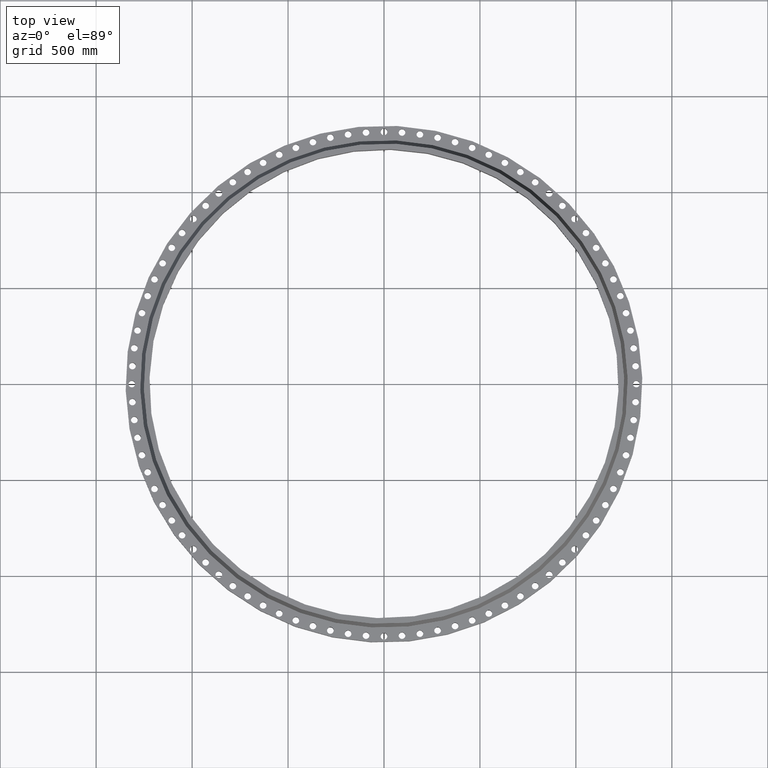
[diagram: clean part render]
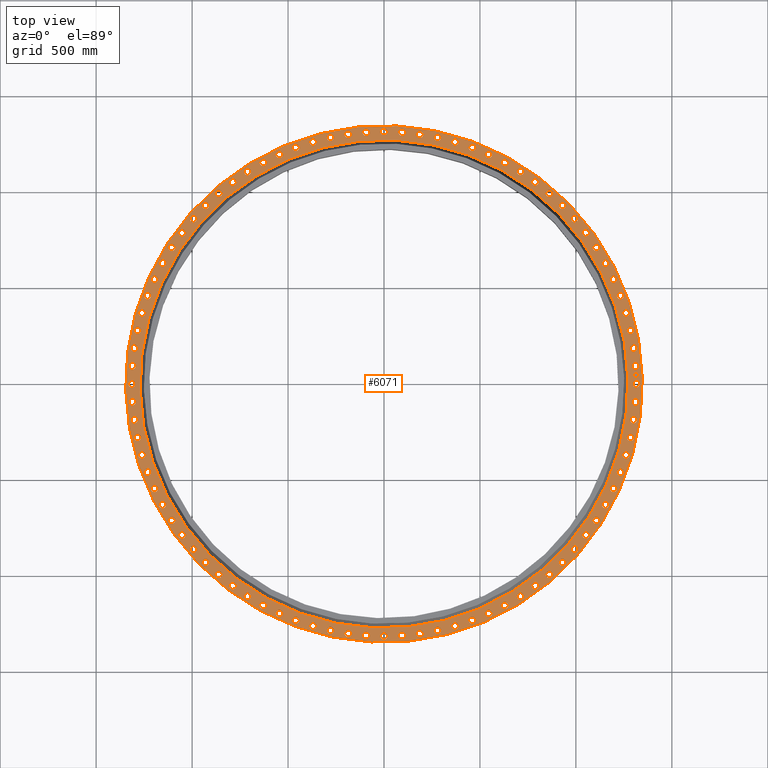
[diagram: same view with one face highlighted and labeled with its STEP entity id]
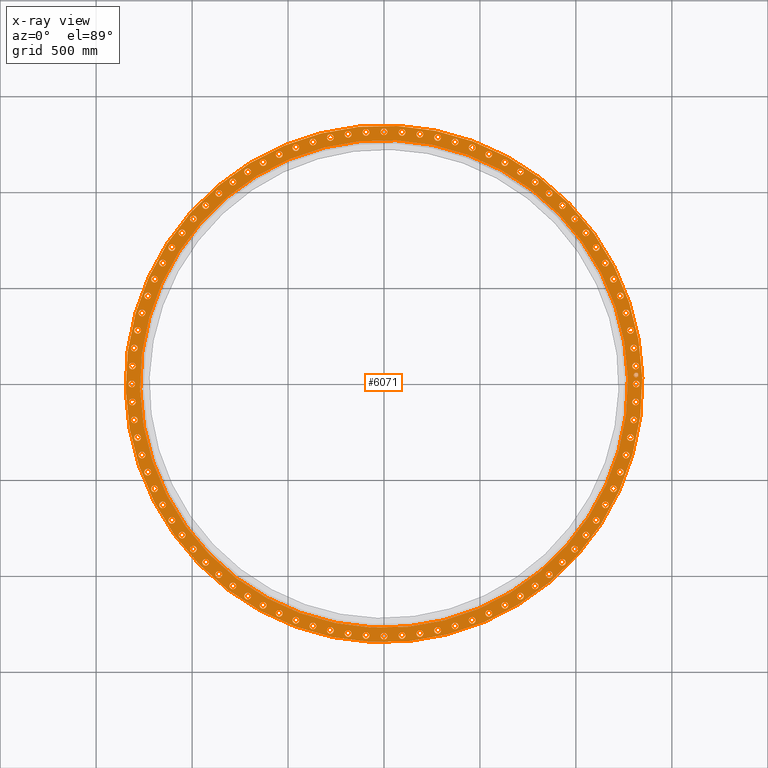
[diagram: x-ray of the same camera — body ghosted, the highlighted face saturated]
A machine part, top view. The second image highlights one B-rep face of the part: STEP entity #6071.
The next image is the same camera in x-ray: the body ghosted, the highlighted face saturated — about 0% of this face is hidden behind the body in this view.
In plain terms, the highlighted planar face has unit normal (0, 0, -1).
Its self-contained STEP definition (entity closure, byte-faithful):
#65=AXIS2_PLACEMENT_3D('Circle Axis2P3D',#63,#64,$) ;
#82=AXIS2_PLACEMENT_3D('Circle Axis2P3D',#80,#81,$) ;
#115=AXIS2_PLACEMENT_3D('Circle Axis2P3D',#113,#114,$) ;
#139=AXIS2_PLACEMENT_3D('Circle Axis2P3D',#137,#138,$) ;
#156=AXIS2_PLACEMENT_3D('Circle Axis2P3D',#154,#155,$) ;
#191=AXIS2_PLACEMENT_3D('Circle Axis2P3D',#189,#190,$) ;
#1968=AXIS2_PLACEMENT_3D('Circle Axis2P3D',#1966,#1967,$) ;
#1980=AXIS2_PLACEMENT_3D('Circle Axis2P3D',#1978,#1979,$) ;
#2011=AXIS2_PLACEMENT_3D('Circle Axis2P3D',#2009,#2010,$) ;
#2023=AXIS2_PLACEMENT_3D('Circle Axis2P3D',#2021,#2022,$) ;
#2054=AXIS2_PLACEMENT_3D('Circle Axis2P3D',#2052,#2053,$) ;
#2066=AXIS2_PLACEMENT_3D('Circle Axis2P3D',#2064,#2065,$) ;
#2097=AXIS2_PLACEMENT_3D('Circle Axis2P3D',#2095,#2096,$) ;
#2109=AXIS2_PLACEMENT_3D('Circle Axis2P3D',#2107,#2108,$) ;
#2140=AXIS2_PLACEMENT_3D('Circle Axis2P3D',#2138,#2139,$) ;
#2152=AXIS2_PLACEMENT_3D('Circle Axis2P3D',#2150,#2151,$) ;
#2183=AXIS2_PLACEMENT_3D('Circle Axis2P3D',#2181,#2182,$) ;
#2195=AXIS2_PLACEMENT_3D('Circle Axis2P3D',#2193,#2194,$) ;
#2226=AXIS2_PLACEMENT_3D('Circle Axis2P3D',#2224,#2225,$) ;
#2238=AXIS2_PLACEMENT_3D('Circle Axis2P3D',#2236,#2237,$) ;
#2269=AXIS2_PLACEMENT_3D('Circle Axis2P3D',#2267,#2268,$) ;
#2281=AXIS2_PLACEMENT_3D('Circle Axis2P3D',#2279,#2280,$) ;
#2312=AXIS2_PLACEMENT_3D('Circle Axis2P3D',#2310,#2311,$) ;
#2324=AXIS2_PLACEMENT_3D('Circle Axis2P3D',#2322,#2323,$) ;
#2355=AXIS2_PLACEMENT_3D('Circle Axis2P3D',#2353,#2354,$) ;
#2367=AXIS2_PLACEMENT_3D('Circle Axis2P3D',#2365,#2366,$) ;
#2398=AXIS2_PLACEMENT_3D('Circle Axis2P3D',#2396,#2397,$) ;
#2410=AXIS2_PLACEMENT_3D('Circle Axis2P3D',#2408,#2409,$) ;
#2441=AXIS2_PLACEMENT_3D('Circle Axis2P3D',#2439,#2440,$) ;
#2453=AXIS2_PLACEMENT_3D('Circle Axis2P3D',#2451,#2452,$) ;
#2484=AXIS2_PLACEMENT_3D('Circle Axis2P3D',#2482,#2483,$) ;
#2496=AXIS2_PLACEMENT_3D('Circle Axis2P3D',#2494,#2495,$) ;
#2527=AXIS2_PLACEMENT_3D('Circle Axis2P3D',#2525,#2526,$) ;
#2539=AXIS2_PLACEMENT_3D('Circle Axis2P3D',#2537,#2538,$) ;
#2570=AXIS2_PLACEMENT_3D('Circle Axis2P3D',#2568,#2569,$) ;
#2582=AXIS2_PLACEMENT_3D('Circle Axis2P3D',#2580,#2581,$) ;
#2613=AXIS2_PLACEMENT_3D('Circle Axis2P3D',#2611,#2612,$) ;
#2625=AXIS2_PLACEMENT_3D('Circle Axis2P3D',#2623,#2624,$) ;
#2656=AXIS2_PLACEMENT_3D('Circle Axis2P3D',#2654,#2655,$) ;
#2668=AXIS2_PLACEMENT_3D('Circle Axis2P3D',#2666,#2667,$) ;
#2699=AXIS2_PLACEMENT_3D('Circle Axis2P3D',#2697,#2698,$) ;
#2711=AXIS2_PLACEMENT_3D('Circle Axis2P3D',#2709,#2710,$) ;
#2742=AXIS2_PLACEMENT_3D('Circle Axis2P3D',#2740,#2741,$) ;
#2754=AXIS2_PLACEMENT_3D('Circle Axis2P3D',#2752,#2753,$) ;
#2785=AXIS2_PLACEMENT_3D('Circle Axis2P3D',#2783,#2784,$) ;
#2797=AXIS2_PLACEMENT_3D('Circle Axis2P3D',#2795,#2796,$) ;
#2828=AXIS2_PLACEMENT_3D('Circle Axis2P3D',#2826,#2827,$) ;
#2840=AXIS2_PLACEMENT_3D('Circle Axis2P3D',#2838,#2839,$) ;
#2871=AXIS2_PLACEMENT_3D('Circle Axis2P3D',#2869,#2870,$) ;
#2883=AXIS2_PLACEMENT_3D('Circle Axis2P3D',#2881,#2882,$) ;
#2914=AXIS2_PLACEMENT_3D('Circle Axis2P3D',#2912,#2913,$) ;
#2926=AXIS2_PLACEMENT_3D('Circle Axis2P3D',#2924,#2925,$) ;
#2957=AXIS2_PLACEMENT_3D('Circle Axis2P3D',#2955,#2956,$) ;
#2969=AXIS2_PLACEMENT_3D('Circle Axis2P3D',#2967,#2968,$) ;
#3000=AXIS2_PLACEMENT_3D('Circle Axis2P3D',#2998,#2999,$) ;
#3012=AXIS2_PLACEMENT_3D('Circle Axis2P3D',#3010,#3011,$) ;
#3043=AXIS2_PLACEMENT_3D('Circle Axis2P3D',#3041,#3042,$) ;
#3055=AXIS2_PLACEMENT_3D('Circle Axis2P3D',#3053,#3054,$) ;
#3086=AXIS2_PLACEMENT_3D('Circle Axis2P3D',#3084,#3085,$) ;
#3098=AXIS2_PLACEMENT_3D('Circle Axis2P3D',#3096,#3097,$) ;
#3129=AXIS2_PLACEMENT_3D('Circle Axis2P3D',#3127,#3128,$) ;
#3141=AXIS2_PLACEMENT_3D('Circle Axis2P3D',#3139,#3140,$) ;
#3172=AXIS2_PLACEMENT_3D('Circle Axis2P3D',#3170,#3171,$) ;
#3184=AXIS2_PLACEMENT_3D('Circle Axis2P3D',#3182,#3183,$) ;
#3215=AXIS2_PLACEMENT_3D('Circle Axis2P3D',#3213,#3214,$) ;
#3227=AXIS2_PLACEMENT_3D('Circle Axis2P3D',#3225,#3226,$) ;
#3258=AXIS2_PLACEMENT_3D('Circle Axis2P3D',#3256,#3257,$) ;
#3270=AXIS2_PLACEMENT_3D('Circle Axis2P3D',#3268,#3269,$) ;
#3301=AXIS2_PLACEMENT_3D('Circle Axis2P3D',#3299,#3300,$) ;
#3313=AXIS2_PLACEMENT_3D('Circle Axis2P3D',#3311,#3312,$) ;
#3344=AXIS2_PLACEMENT_3D('Circle Axis2P3D',#3342,#3343,$) ;
#3356=AXIS2_PLACEMENT_3D('Circle Axis2P3D',#3354,#3355,$) ;
#3387=AXIS2_PLACEMENT_3D('Circle Axis2P3D',#3385,#3386,$) ;
#3399=AXIS2_PLACEMENT_3D('Circle Axis2P3D',#3397,#3398,$) ;
#3430=AXIS2_PLACEMENT_3D('Circle Axis2P3D',#3428,#3429,$) ;
#3442=AXIS2_PLACEMENT_3D('Circle Axis2P3D',#3440,#3441,$) ;
#3473=AXIS2_PLACEMENT_3D('Circle Axis2P3D',#3471,#3472,$) ;
#3485=AXIS2_PLACEMENT_3D('Circle Axis2P3D',#3483,#3484,$) ;
#3516=AXIS2_PLACEMENT_3D('Circle Axis2P3D',#3514,#3515,$) ;
#3528=AXIS2_PLACEMENT_3D('Circle Axis2P3D',#3526,#3527,$) ;
#3559=AXIS2_PLACEMENT_3D('Circle Axis2P3D',#3557,#3558,$) ;
#3571=AXIS2_PLACEMENT_3D('Circle Axis2P3D',#3569,#3570,$) ;
#3602=AXIS2_PLACEMENT_3D('Circle Axis2P3D',#3600,#3601,$) ;
#3614=AXIS2_PLACEMENT_3D('Circle Axis2P3D',#3612,#3613,$) ;
#3645=AXIS2_PLACEMENT_3D('Circle Axis2P3D',#3643,#3644,$) ;
#3657=AXIS2_PLACEMENT_3D('Circle Axis2P3D',#3655,#3656,$) ;
#3688=AXIS2_PLACEMENT_3D('Circle Axis2P3D',#3686,#3687,$) ;
#3700=AXIS2_PLACEMENT_3D('Circle Axis2P3D',#3698,#3699,$) ;
#3731=AXIS2_PLACEMENT_3D('Circle Axis2P3D',#3729,#3730,$) ;
#3743=AXIS2_PLACEMENT_3D('Circle Axis2P3D',#3741,#3742,$) ;
#3774=AXIS2_PLACEMENT_3D('Circle Axis2P3D',#3772,#3773,$) ;
#3786=AXIS2_PLACEMENT_3D('Circle Axis2P3D',#3784,#3785,$) ;
#3817=AXIS2_PLACEMENT_3D('Circle Axis2P3D',#3815,#3816,$) ;
#3829=AXIS2_PLACEMENT_3D('Circle Axis2P3D',#3827,#3828,$) ;
#3860=AXIS2_PLACEMENT_3D('Circle Axis2P3D',#3858,#3859,$) ;
#3872=AXIS2_PLACEMENT_3D('Circle Axis2P3D',#3870,#3871,$) ;
#3903=AXIS2_PLACEMENT_3D('Circle Axis2P3D',#3901,#3902,$) ;
#3915=AXIS2_PLACEMENT_3D('Circle Axis2P3D',#3913,#3914,$) ;
#3946=AXIS2_PLACEMENT_3D('Circle Axis2P3D',#3944,#3945,$) ;
#3958=AXIS2_PLACEMENT_3D('Circle Axis2P3D',#3956,#3957,$) ;
#3989=AXIS2_PLACEMENT_3D('Circle Axis2P3D',#3987,#3988,$) ;
#4001=AXIS2_PLACEMENT_3D('Circle Axis2P3D',#3999,#4000,$) ;
#4032=AXIS2_PLACEMENT_3D('Circle Axis2P3D',#4030,#4031,$) ;
#4044=AXIS2_PLACEMENT_3D('Circle Axis2P3D',#4042,#4043,$) ;
#4075=AXIS2_PLACEMENT_3D('Circle Axis2P3D',#4073,#4074,$) ;
#4087=AXIS2_PLACEMENT_3D('Circle Axis2P3D',#4085,#4086,$) ;
#4118=AXIS2_PLACEMENT_3D('Circle Axis2P3D',#4116,#4117,$) ;
#4130=AXIS2_PLACEMENT_3D('Circle Axis2P3D',#4128,#4129,$) ;
#4161=AXIS2_PLACEMENT_3D('Circle Axis2P3D',#4159,#4160,$) ;
#4173=AXIS2_PLACEMENT_3D('Circle Axis2P3D',#4171,#4172,$) ;
#4204=AXIS2_PLACEMENT_3D('Circle Axis2P3D',#4202,#4203,$) ;
#4216=AXIS2_PLACEMENT_3D('Circle Axis2P3D',#4214,#4215,$) ;
#4247=AXIS2_PLACEMENT_3D('Circle Axis2P3D',#4245,#4246,$) ;
#4259=AXIS2_PLACEMENT_3D('Circle Axis2P3D',#4257,#4258,$) ;
#4290=AXIS2_PLACEMENT_3D('Circle Axis2P3D',#4288,#4289,$) ;
#4302=AXIS2_PLACEMENT_3D('Circle Axis2P3D',#4300,#4301,$) ;
#4333=AXIS2_PLACEMENT_3D('Circle Axis2P3D',#4331,#4332,$) ;
#4345=AXIS2_PLACEMENT_3D('Circle Axis2P3D',#4343,#4344,$) ;
#4376=AXIS2_PLACEMENT_3D('Circle Axis2P3D',#4374,#4375,$) ;
#4388=AXIS2_PLACEMENT_3D('Circle Axis2P3D',#4386,#4387,$) ;
#4419=AXIS2_PLACEMENT_3D('Circle Axis2P3D',#4417,#4418,$) ;
#4431=AXIS2_PLACEMENT_3D('Circle Axis2P3D',#4429,#4430,$) ;
#4462=AXIS2_PLACEMENT_3D('Circle Axis2P3D',#4460,#4461,$) ;
#4474=AXIS2_PLACEMENT_3D('Circle Axis2P3D',#4472,#4473,$) ;
#4505=AXIS2_PLACEMENT_3D('Circle Axis2P3D',#4503,#4504,$) ;
#4517=AXIS2_PLACEMENT_3D('Circle Axis2P3D',#4515,#4516,$) ;
#4548=AXIS2_PLACEMENT_3D('Circle Axis2P3D',#4546,#4547,$) ;
#4560=AXIS2_PLACEMENT_3D('Circle Axis2P3D',#4558,#4559,$) ;
#4591=AXIS2_PLACEMENT_3D('Circle Axis2P3D',#4589,#4590,$) ;
#4603=AXIS2_PLACEMENT_3D('Circle Axis2P3D',#4601,#4602,$) ;
#4634=AXIS2_PLACEMENT_3D('Circle Axis2P3D',#4632,#4633,$) ;
#4646=AXIS2_PLACEMENT_3D('Circle Axis2P3D',#4644,#4645,$) ;
#4677=AXIS2_PLACEMENT_3D('Circle Axis2P3D',#4675,#4676,$) ;
#4689=AXIS2_PLACEMENT_3D('Circle Axis2P3D',#4687,#4688,$) ;
#4720=AXIS2_PLACEMENT_3D('Circle Axis2P3D',#4718,#4719,$) ;
#4732=AXIS2_PLACEMENT_3D('Circle Axis2P3D',#4730,#4731,$) ;
#4763=AXIS2_PLACEMENT_3D('Circle Axis2P3D',#4761,#4762,$) ;
#4775=AXIS2_PLACEMENT_3D('Circle Axis2P3D',#4773,#4774,$) ;
#4806=AXIS2_PLACEMENT_3D('Circle Axis2P3D',#4804,#4805,$) ;
#4818=AXIS2_PLACEMENT_3D('Circle Axis2P3D',#4816,#4817,$) ;
#4849=AXIS2_PLACEMENT_3D('Circle Axis2P3D',#4847,#4848,$) ;
#4861=AXIS2_PLACEMENT_3D('Circle Axis2P3D',#4859,#4860,$) ;
#4892=AXIS2_PLACEMENT_3D('Circle Axis2P3D',#4890,#4891,$) ;
#4904=AXIS2_PLACEMENT_3D('Circle Axis2P3D',#4902,#4903,$) ;
#4935=AXIS2_PLACEMENT_3D('Circle Axis2P3D',#4933,#4934,$) ;
#4947=AXIS2_PLACEMENT_3D('Circle Axis2P3D',#4945,#4946,$) ;
#4978=AXIS2_PLACEMENT_3D('Circle Axis2P3D',#4976,#4977,$) ;
#4990=AXIS2_PLACEMENT_3D('Circle Axis2P3D',#4988,#4989,$) ;
#5021=AXIS2_PLACEMENT_3D('Circle Axis2P3D',#5019,#5020,$) ;
#5033=AXIS2_PLACEMENT_3D('Circle Axis2P3D',#5031,#5032,$) ;
#5064=AXIS2_PLACEMENT_3D('Circle Axis2P3D',#5062,#5063,$) ;
#5076=AXIS2_PLACEMENT_3D('Circle Axis2P3D',#5074,#5075,$) ;
#5107=AXIS2_PLACEMENT_3D('Circle Axis2P3D',#5105,#5106,$) ;
#5119=AXIS2_PLACEMENT_3D('Circle Axis2P3D',#5117,#5118,$) ;
#5150=AXIS2_PLACEMENT_3D('Circle Axis2P3D',#5148,#5149,$) ;
#5162=AXIS2_PLACEMENT_3D('Circle Axis2P3D',#5160,#5161,$) ;
#5193=AXIS2_PLACEMENT_3D('Circle Axis2P3D',#5191,#5192,$) ;
#5205=AXIS2_PLACEMENT_3D('Circle Axis2P3D',#5203,#5204,$) ;
#5236=AXIS2_PLACEMENT_3D('Circle Axis2P3D',#5234,#5235,$) ;
#5248=AXIS2_PLACEMENT_3D('Circle Axis2P3D',#5246,#5247,$) ;
#5279=AXIS2_PLACEMENT_3D('Circle Axis2P3D',#5277,#5278,$) ;
#5291=AXIS2_PLACEMENT_3D('Circle Axis2P3D',#5289,#5290,$) ;
#5322=AXIS2_PLACEMENT_3D('Circle Axis2P3D',#5320,#5321,$) ;
#5334=AXIS2_PLACEMENT_3D('Circle Axis2P3D',#5332,#5333,$) ;
#5365=AXIS2_PLACEMENT_3D('Circle Axis2P3D',#5363,#5364,$) ;
#5377=AXIS2_PLACEMENT_3D('Circle Axis2P3D',#5375,#5376,$) ;
#5408=AXIS2_PLACEMENT_3D('Circle Axis2P3D',#5406,#5407,$) ;
#5420=AXIS2_PLACEMENT_3D('Circle Axis2P3D',#5418,#5419,$) ;
#5451=AXIS2_PLACEMENT_3D('Circle Axis2P3D',#5449,#5450,$) ;
#5463=AXIS2_PLACEMENT_3D('Circle Axis2P3D',#5461,#5462,$) ;
#5494=AXIS2_PLACEMENT_3D('Circle Axis2P3D',#5492,#5493,$) ;
#5506=AXIS2_PLACEMENT_3D('Circle Axis2P3D',#5504,#5505,$) ;
#5537=AXIS2_PLACEMENT_3D('Circle Axis2P3D',#5535,#5536,$) ;
#5549=AXIS2_PLACEMENT_3D('Circle Axis2P3D',#5547,#5548,$) ;
#5580=AXIS2_PLACEMENT_3D('Circle Axis2P3D',#5578,#5579,$) ;
#5592=AXIS2_PLACEMENT_3D('Circle Axis2P3D',#5590,#5591,$) ;
#5623=AXIS2_PLACEMENT_3D('Circle Axis2P3D',#5621,#5622,$) ;
#5635=AXIS2_PLACEMENT_3D('Circle Axis2P3D',#5633,#5634,$) ;
#5666=AXIS2_PLACEMENT_3D('Circle Axis2P3D',#5664,#5665,$) ;
#5678=AXIS2_PLACEMENT_3D('Circle Axis2P3D',#5676,#5677,$) ;
#5691=AXIS2_PLACEMENT_3D('Plane Axis2P3D',#5688,#5689,#5690) ;
#6055=AXIS2_PLACEMENT_3D('Circle Axis2P3D',#6053,#6054,$) ;
#6064=AXIS2_PLACEMENT_3D('Circle Axis2P3D',#6062,#6063,$) ;
#46=CARTESIAN_POINT('Vertex',(51.1444680325,0.330803621638,5.00000000002)) ;
#60=CARTESIAN_POINT('Vertex',(52.3555319679,-0.330803621638,5.00000000002)) ;
#63=CARTESIAN_POINT('Axis2P3D Location',(51.7500000002,0.,5.00000000002)) ;
#80=CARTESIAN_POINT('Axis2P3D Location',(51.7500000002,0.,5.00000000002)) ;
#110=CARTESIAN_POINT('Vertex',(-25.4095535461,-46.5118757804,5.00000000002)) ;
#113=CARTESIAN_POINT('Axis2P3D Location',(0.,0.,5.00000000002)) ;
#117=CARTESIAN_POINT('Vertex',(25.4095535461,46.5118757804,5.00000000002)) ;
#137=CARTESIAN_POINT('Axis2P3D Location',(0.,0.,5.00000000002)) ;
#154=CARTESIAN_POINT('Axis2P3D Location',(0.,0.,5.00000000002)) ;
#158=CARTESIAN_POINT('Vertex',(23.9954140779,43.9233108469,5.00000000002)) ;
#160=CARTESIAN_POINT('Vertex',(-23.9954140779,-43.9233108469,5.00000000002)) ;
#189=CARTESIAN_POINT('Axis2P3D Location',(0.,0.,5.00000000002)) ;
#1956=CARTESIAN_POINT('Vertex',(-51.0377570498,3.31864380267,5.00000000002)) ;
#1963=CARTESIAN_POINT('Vertex',(-52.1985368128,4.06496165848,5.00000000002)) ;
#1966=CARTESIAN_POINT('Axis2P3D Location',(-51.6181469313,3.69180273058,5.00000000002)) ;
#1978=CARTESIAN_POINT('Axis2P3D Location',(-51.6181469313,3.69180273058,5.00000000002)) ;
#1999=CARTESIAN_POINT('Vertex',(50.6709693561,-6.95118017887,5.00000000002)) ;
#2006=CARTESIAN_POINT('Vertex',(51.775549879,-7.77840558247,5.00000000002)) ;
#2009=CARTESIAN_POINT('Axis2P3D Location',(51.2232596175,-7.36479288067,5.00000000002)) ;
#2021=CARTESIAN_POINT('Axis2P3D Location',(51.2232596175,-7.36479288067,5.00000000002)) ;
#2042=CARTESIAN_POINT('Vertex',(-50.6709693561,6.95118017887,5.00000000002)) ;
#2049=CARTESIAN_POINT('Vertex',(-51.775549879,7.77840558247,5.00000000002)) ;
#2052=CARTESIAN_POINT('Axis2P3D Location',(-51.2232596175,7.36479288067,5.00000000002)) ;
#2064=CARTESIAN_POINT('Axis2P3D Location',(-51.2232596175,7.36479288067,5.00000000002)) ;
#2085=CARTESIAN_POINT('Vertex',(50.0459740173,-10.5482949342,5.00000000002)) ;
#2092=CARTESIAN_POINT('Vertex',(51.0887266111,-11.4522125346,5.00000000002)) ;
#2095=CARTESIAN_POINT('Axis2P3D Location',(50.5673503142,-11.0002537344,5.00000000002)) ;
#2107=CARTESIAN_POINT('Axis2P3D Location',(50.5673503142,-11.0002537344,5.00000000002)) ;
#2128=CARTESIAN_POINT('Vertex',(-50.0459740173,10.5482949342,5.00000000002)) ;
#2135=CARTESIAN_POINT('Vertex',(-51.0887266111,11.4522125346,5.00000000002)) ;
#2138=CARTESIAN_POINT('Axis2P3D Location',(-50.5673503142,11.0002537344,5.00000000002)) ;
#2150=CARTESIAN_POINT('Axis2P3D Location',(-50.5673503142,11.0002537344,5.00000000002)) ;
#2171=CARTESIAN_POINT('Vertex',(49.1659558666,-14.0916579965,5.00000000002)) ;
#2178=CARTESIAN_POINT('Vertex',(50.1415669029,-15.0676616367,5.00000000002)) ;
#2181=CARTESIAN_POINT('Axis2P3D Location',(49.6537613847,-14.5796598166,5.00000000002)) ;
#2193=CARTESIAN_POINT('Axis2P3D Location',(49.6537613847,-14.5796598166,5.00000000002)) ;
#2214=CARTESIAN_POINT('Vertex',(-49.1659558666,14.0916579965,5.00000000002)) ;
#2221=CARTESIAN_POINT('Vertex',(-50.1415669029,15.0676616367,5.00000000002)) ;
#2224=CARTESIAN_POINT('Axis2P3D Location',(-49.6537613847,14.5796598166,5.00000000002)) ;
#2236=CARTESIAN_POINT('Axis2P3D Location',(-49.6537613847,14.5796598166,5.00000000002)) ;
#2257=CARTESIAN_POINT('Vertex',(48.0353992746,-17.5632131997,5.00000000002)) ;
#2264=CARTESIAN_POINT('Vertex',(48.9388972633,-18.606329389,5.00000000002)) ;
#2267=CARTESIAN_POINT('Axis2P3D Location',(48.4871482689,-18.0847712943,5.00000000002)) ;
#2279=CARTESIAN_POINT('Axis2P3D Location',(48.4871482689,-18.0847712943,5.00000000002)) ;
#2300=CARTESIAN_POINT('Vertex',(-48.0353992746,17.5632131997,5.00000000002)) ;
#2307=CARTESIAN_POINT('Vertex',(-48.9388972633,18.606329389,5.00000000002)) ;
#2310=CARTESIAN_POINT('Axis2P3D Location',(-48.4871482689,18.0847712943,5.00000000002)) ;
#2322=CARTESIAN_POINT('Axis2P3D Location',(-48.4871482689,18.0847712943,5.00000000002)) ;
#2343=CARTESIAN_POINT('Vertex',(46.6600652985,-20.9452702943,5.00000000002)) ;
#2350=CARTESIAN_POINT('Vertex',(47.486846221,-22.0501835516,5.00000000002)) ;
#2353=CARTESIAN_POINT('Axis2P3D Location',(47.0734557598,-21.4977269229,5.00000000002)) ;
#2365=CARTESIAN_POINT('Axis2P3D Location',(47.0734557598,-21.4977269229,5.00000000002)) ;
#2386=CARTESIAN_POINT('Vertex',(-46.6600652985,20.9452702943,5.00000000002)) ;
#2393=CARTESIAN_POINT('Vertex',(-47.486846221,22.0501835516,5.00000000002)) ;
#2396=CARTESIAN_POINT('Axis2P3D Location',(-47.0734557598,21.4977269229,5.00000000002)) ;
#2408=CARTESIAN_POINT('Axis2P3D Location',(-47.0734557598,21.4977269229,5.00000000002)) ;
#2429=CARTESIAN_POINT('Vertex',(45.0469623252,-24.2205950925,5.00000000002)) ;
#2436=CARTESIAN_POINT('Vertex',(45.7928130954,-25.3816750332,5.00000000002)) ;
#2439=CARTESIAN_POINT('Axis2P3D Location',(45.4198877103,-24.8011350629,5.00000000002)) ;
#2451=CARTESIAN_POINT('Axis2P3D Location',(45.4198877103,-24.8011350629,5.00000000002)) ;
#2472=CARTESIAN_POINT('Vertex',(-45.0469623252,24.2205950925,5.00000000002)) ;
#2479=CARTESIAN_POINT('Vertex',(-45.7928130954,25.3816750332,5.00000000002)) ;
#2482=CARTESIAN_POINT('Axis2P3D Location',(-45.4198877103,24.8011350629,5.00000000002)) ;
#2494=CARTESIAN_POINT('Axis2P3D Location',(-45.4198877103,24.8011350629,5.00000000002)) ;
#2515=CARTESIAN_POINT('Vertex',(43.2043103575,-27.37249729,5.00000000002)) ;
#2522=CARTESIAN_POINT('Vertex',(43.8654302908,-28.5838273168,5.00000000002)) ;
#2525=CARTESIAN_POINT('Axis2P3D Location',(43.5348703242,-27.9781623034,5.00000000002)) ;
#2537=CARTESIAN_POINT('Axis2P3D Location',(43.5348703242,-27.9781623034,5.00000000002)) ;
#2558=CARTESIAN_POINT('Vertex',(-43.2043103575,27.37249729,5.00000000002)) ;
#2565=CARTESIAN_POINT('Vertex',(-43.8654302908,28.5838273168,5.00000000002)) ;
#2568=CARTESIAN_POINT('Axis2P3D Location',(-43.5348703242,27.9781623034,5.00000000002)) ;
#2580=CARTESIAN_POINT('Axis2P3D Location',(-43.5348703242,27.9781623034,5.00000000002)) ;
#2601=CARTESIAN_POINT('Vertex',(41.1414991276,-30.3849155157,5.00000000002)) ;
#2608=CARTESIAN_POINT('Vertex',(41.7145193084,-31.6403229685,5.00000000002)) ;
#2611=CARTESIAN_POINT('Axis2P3D Location',(41.428009218,-31.0126192421,5.00000000002)) ;
#2623=CARTESIAN_POINT('Axis2P3D Location',(41.428009218,-31.0126192421,5.00000000002)) ;
#2644=CARTESIAN_POINT('Vertex',(-41.1414991276,30.3849155157,5.00000000002)) ;
#2651=CARTESIAN_POINT('Vertex',(-41.7145193084,31.6403229685,5.00000000002)) ;
#2654=CARTESIAN_POINT('Axis2P3D Location',(-41.428009218,31.0126192421,5.00000000002)) ;
#2666=CARTESIAN_POINT('Axis2P3D Location',(-41.428009218,31.0126192421,5.00000000002)) ;
#2687=CARTESIAN_POINT('Vertex',(38.8690402486,-33.2424991768,5.00000000002)) ;
#2694=CARTESIAN_POINT('Vertex',(39.3510406974,-34.5355867869,5.00000000002)) ;
#2697=CARTESIAN_POINT('Axis2P3D Location',(39.110040473,-33.8890429818,5.00000000002)) ;
#2709=CARTESIAN_POINT('Axis2P3D Location',(39.110040473,-33.8890429818,5.00000000002)) ;
#2730=CARTESIAN_POINT('Vertex',(-38.8690402486,33.2424991768,5.00000000002)) ;
#2737=CARTESIAN_POINT('Vertex',(-39.3510406974,34.5355867869,5.00000000002)) ;
#2740=CARTESIAN_POINT('Axis2P3D Location',(-39.110040473,33.8890429818,5.00000000002)) ;
#2752=CARTESIAN_POINT('Axis2P3D Location',(-39.110040473,33.8890429818,5.00000000002)) ;
#2773=CARTESIAN_POINT('Vertex',(36.3985136501,-35.9306866819,5.00000000002)) ;
#2780=CARTESIAN_POINT('Vertex',(36.787038203,-37.2548651712,5.00000000002)) ;
#2783=CARTESIAN_POINT('Axis2P3D Location',(36.5927759266,-36.5927759266,5.00000000002)) ;
#2795=CARTESIAN_POINT('Axis2P3D Location',(36.5927759266,-36.5927759266,5.00000000002)) ;
#2816=CARTESIAN_POINT('Vertex',(-36.3985136501,35.9306866819,5.00000000002)) ;
#2823=CARTESIAN_POINT('Vertex',(-36.787038203,37.2548651712,5.00000000002)) ;
#2826=CARTESIAN_POINT('Axis2P3D Location',(-36.5927759266,36.5927759266,5.00000000002)) ;
#2838=CARTESIAN_POINT('Axis2P3D Location',(-36.5927759266,36.5927759266,5.00000000002)) ;
#2859=CARTESIAN_POINT('Vertex',(33.7425085693,-38.4357796437,5.00000000002)) ;
#2866=CARTESIAN_POINT('Vertex',(34.0355773944,-39.7843013023,5.00000000002)) ;
#2869=CARTESIAN_POINT('Axis2P3D Location',(33.8890429818,-39.110040473,5.00000000002)) ;
#2881=CARTESIAN_POINT('Axis2P3D Location',(33.8890429818,-39.110040473,5.00000000002)) ;
#2902=CARTESIAN_POINT('Vertex',(-33.7425085693,38.4357796437,5.00000000002)) ;
#2909=CARTESIAN_POINT('Vertex',(-34.0355773944,39.7843013023,5.00000000002)) ;
#2912=CARTESIAN_POINT('Axis2P3D Location',(-33.8890429818,39.110040473,5.00000000002)) ;
#2924=CARTESIAN_POINT('Axis2P3D Location',(-33.8890429818,39.110040473,5.00000000002)) ;
#2945=CARTESIAN_POINT('Vertex',(30.9145593992,-40.7450126827,5.00000000002)) ;
#2952=CARTESIAN_POINT('Vertex',(31.1106790849,-42.1110057533,5.00000000002)) ;
#2955=CARTESIAN_POINT('Axis2P3D Location',(31.0126192421,-41.428009218,5.00000000002)) ;
#2967=CARTESIAN_POINT('Axis2P3D Location',(31.0126192421,-41.428009218,5.00000000002)) ;
#2988=CARTESIAN_POINT('Vertex',(-30.9145593992,40.7450126827,5.00000000002)) ;
#2995=CARTESIAN_POINT('Vertex',(-31.1106790849,42.1110057533,5.00000000002)) ;
#2998=CARTESIAN_POINT('Axis2P3D Location',(-31.0126192421,41.428009218,5.00000000002)) ;
#3010=CARTESIAN_POINT('Axis2P3D Location',(-31.0126192421,41.428009218,5.00000000002)) ;
#3031=CARTESIAN_POINT('Vertex',(27.9290767208,-42.8466184767,5.00000000002)) ;
#3038=CARTESIAN_POINT('Vertex',(28.0272478861,-44.2231221717,5.00000000002)) ;
#3041=CARTESIAN_POINT('Axis2P3D Location',(27.9781623034,-43.5348703242,5.00000000002)) ;
#3053=CARTESIAN_POINT('Axis2P3D Location',(27.9781623034,-43.5348703242,5.00000000002)) ;
#3074=CARTESIAN_POINT('Vertex',(-27.9290767208,42.8466184767,5.00000000002)) ;
#3081=CARTESIAN_POINT('Vertex',(-28.0272478861,44.2231221717,5.00000000002)) ;
#3084=CARTESIAN_POINT('Axis2P3D Location',(-27.9781623034,43.5348703242,5.00000000002)) ;
#3096=CARTESIAN_POINT('Axis2P3D Location',(-27.9781623034,43.5348703242,5.00000000002)) ;
#3117=CARTESIAN_POINT('Vertex',(24.8012738693,-44.7298877242,5.00000000002)) ;
#3124=CARTESIAN_POINT('Vertex',(24.8009962564,-46.1098876963,5.00000000002)) ;
#3127=CARTESIAN_POINT('Axis2P3D Location',(24.8011350629,-45.4198877103,5.00000000002)) ;
#3139=CARTESIAN_POINT('Axis2P3D Location',(24.8011350629,-45.4198877103,5.00000000002)) ;
#3160=CARTESIAN_POINT('Vertex',(-24.8012738693,44.7298877242,5.00000000002)) ;
#3167=CARTESIAN_POINT('Vertex',(-24.8009962564,46.1098876963,5.00000000002)) ;
#3170=CARTESIAN_POINT('Axis2P3D Location',(-24.8011350629,45.4198877103,5.00000000002)) ;
#3182=CARTESIAN_POINT('Axis2P3D Location',(-24.8011350629,45.4198877103,5.00000000002)) ;
#3203=CARTESIAN_POINT('Vertex',(21.5470894111,-46.385223717,5.00000000002)) ;
#3210=CARTESIAN_POINT('Vertex',(21.4483644348,-47.7616878026,5.00000000002)) ;
#3213=CARTESIAN_POINT('Axis2P3D Location',(21.4977269229,-47.0734557598,5.00000000002)) ;
#3225=CARTESIAN_POINT('Axis2P3D Location',(21.4977269229,-47.0734557598,5.00000000002)) ;
#3246=CARTESIAN_POINT('Vertex',(-21.5470894111,46.385223717,5.00000000002)) ;
#3253=CARTESIAN_POINT('Vertex',(-21.4483644348,47.7616878026,5.00000000002)) ;
#3256=CARTESIAN_POINT('Axis2P3D Location',(-21.4977269229,47.0734557598,5.00000000002)) ;
#3268=CARTESIAN_POINT('Axis2P3D Location',(-21.4977269229,47.0734557598,5.00000000002)) ;
#3289=CARTESIAN_POINT('Vertex',(18.1831059243,-47.8041912421,5.00000000002)) ;
#3296=CARTESIAN_POINT('Vertex',(17.9864366643,-49.1701052958,5.00000000002)) ;
#3299=CARTESIAN_POINT('Axis2P3D Location',(18.0847712943,-48.4871482689,5.00000000002)) ;
#3311=CARTESIAN_POINT('Axis2P3D Location',(18.0847712943,-48.4871482689,5.00000000002)) ;
#3332=CARTESIAN_POINT('Vertex',(-18.1831059243,47.8041912421,5.00000000002)) ;
#3339=CARTESIAN_POINT('Vertex',(-17.9864366643,49.1701052958,5.00000000002)) ;
#3342=CARTESIAN_POINT('Axis2P3D Location',(-18.0847712943,48.4871482689,5.00000000002)) ;
#3354=CARTESIAN_POINT('Axis2P3D Location',(-18.0847712943,48.4871482689,5.00000000002)) ;
#3375=CARTESIAN_POINT('Vertex',(14.7264654977,-48.9795595663,5.00000000002)) ;
#3382=CARTESIAN_POINT('Vertex',(14.4328541355,-50.3279632032,5.00000000002)) ;
#3385=CARTESIAN_POINT('Axis2P3D Location',(14.5796598166,-49.6537613847,5.00000000002)) ;
#3397=CARTESIAN_POINT('Axis2P3D Location',(14.5796598166,-49.6537613847,5.00000000002)) ;
#3418=CARTESIAN_POINT('Vertex',(-14.7264654977,48.9795595663,5.00000000002)) ;
#3425=CARTESIAN_POINT('Vertex',(-14.4328541355,50.3279632032,5.00000000002)) ;
#3428=CARTESIAN_POINT('Axis2P3D Location',(-14.5796598166,49.6537613847,5.00000000002)) ;
#3440=CARTESIAN_POINT('Axis2P3D Location',(-14.5796598166,49.6537613847,5.00000000002)) ;
#3461=CARTESIAN_POINT('Vertex',(11.1947823785,-49.9053392821,5.00000000002)) ;
#3468=CARTESIAN_POINT('Vertex',(10.8057250903,-51.2293613463,5.00000000002)) ;
#3471=CARTESIAN_POINT('Axis2P3D Location',(11.0002537344,-50.5673503142,5.00000000002)) ;
#3483=CARTESIAN_POINT('Axis2P3D Location',(11.0002537344,-50.5673503142,5.00000000002)) ;
#3504=CARTESIAN_POINT('Vertex',(-11.1947823785,49.9053392821,5.00000000002)) ;
#3511=CARTESIAN_POINT('Vertex',(-10.8057250903,51.2293613463,5.00000000002)) ;
#3514=CARTESIAN_POINT('Axis2P3D Location',(-11.0002537344,50.5673503142,5.00000000002)) ;
#3526=CARTESIAN_POINT('Axis2P3D Location',(-11.0002537344,50.5673503142,5.00000000002)) ;
#3547=CARTESIAN_POINT('Vertex',(7.60605321437,-50.5768128282,5.00000000002)) ;
#3554=CARTESIAN_POINT('Vertex',(7.12353254698,-51.8697064068,5.00000000002)) ;
#3557=CARTESIAN_POINT('Axis2P3D Location',(7.36479288067,-51.2232596175,5.00000000002)) ;
#3569=CARTESIAN_POINT('Axis2P3D Location',(7.36479288067,-51.2232596175,5.00000000002)) ;
#3590=CARTESIAN_POINT('Vertex',(-7.60605321437,50.5768128282,5.00000000002)) ;
#3597=CARTESIAN_POINT('Vertex',(-7.12353254698,51.8697064068,5.00000000002)) ;
#3600=CARTESIAN_POINT('Axis2P3D Location',(-7.36479288067,51.2232596175,5.00000000002)) ;
#3612=CARTESIAN_POINT('Axis2P3D Location',(-7.36479288067,51.2232596175,5.00000000002)) ;
#3633=CARTESIAN_POINT('Vertex',(3.97856534652,-50.9905585295,5.00000000002)) ;
#3640=CARTESIAN_POINT('Vertex',(3.40504011463,-52.2457353331,5.00000000002)) ;
#3643=CARTESIAN_POINT('Axis2P3D Location',(3.69180273058,-51.6181469313,5.00000000002)) ;
#3655=CARTESIAN_POINT('Axis2P3D Location',(3.69180273058,-51.6181469313,5.00000000002)) ;
#3676=CARTESIAN_POINT('Vertex',(-3.97856534652,50.9905585295,5.00000000002)) ;
#3683=CARTESIAN_POINT('Vertex',(-3.40504011463,52.2457353331,5.00000000002)) ;
#3686=CARTESIAN_POINT('Axis2P3D Location',(-3.69180273058,51.6181469313,5.00000000002)) ;
#3698=CARTESIAN_POINT('Axis2P3D Location',(-3.69180273058,51.6181469313,5.00000000002)) ;
#3719=CARTESIAN_POINT('Vertex',(0.330803621638,-51.1444680325,5.00000000002)) ;
#3726=CARTESIAN_POINT('Vertex',(-0.330803621638,-52.3555319679,5.00000000002)) ;
#3729=CARTESIAN_POINT('Axis2P3D Location',(-5.78294591283E-015,-51.7500000002,5.00000000002)) ;
#3741=CARTESIAN_POINT('Axis2P3D Location',(-5.78294591283E-015,-51.7500000002,5.00000000002)) ;
#3762=CARTESIAN_POINT('Vertex',(-0.330803621638,51.1444680325,5.00000000002)) ;
#3769=CARTESIAN_POINT('Vertex',(0.330803621638,52.3555319679,5.00000000002)) ;
#3772=CARTESIAN_POINT('Axis2P3D Location',(-9.50632077842E-015,51.7500000002,5.00000000002)) ;
#3784=CARTESIAN_POINT('Axis2P3D Location',(-9.50632077842E-015,51.7500000002,5.00000000002)) ;
#3805=CARTESIAN_POINT('Vertex',(-3.31864380267,-51.0377570498,5.00000000002)) ;
#3812=CARTESIAN_POINT('Vertex',(-4.06496165848,-52.1985368128,5.00000000002)) ;
#3815=CARTESIAN_POINT('Axis2P3D Location',(-3.69180273058,-51.6181469313,5.00000000002)) ;
#3827=CARTESIAN_POINT('Axis2P3D Location',(-3.69180273058,-51.6181469313,5.00000000002)) ;
#3848=CARTESIAN_POINT('Vertex',(3.31864380267,51.0377570498,5.00000000002)) ;
#3855=CARTESIAN_POINT('Vertex',(4.06496165848,52.1985368128,5.00000000002)) ;
#3858=CARTESIAN_POINT('Axis2P3D Location',(3.69180273057,51.6181469313,5.00000000002)) ;
#3870=CARTESIAN_POINT('Axis2P3D Location',(3.69180273057,51.6181469313,5.00000000002)) ;
#3891=CARTESIAN_POINT('Vertex',(-6.95118017887,-50.6709693561,5.00000000002)) ;
#3898=CARTESIAN_POINT('Vertex',(-7.77840558247,-51.775549879,5.00000000002)) ;
#3901=CARTESIAN_POINT('Axis2P3D Location',(-7.36479288067,-51.2232596175,5.00000000002)) ;
#3913=CARTESIAN_POINT('Axis2P3D Location',(-7.36479288067,-51.2232596175,5.00000000002)) ;
#3934=CARTESIAN_POINT('Vertex',(6.95118017887,50.6709693561,5.00000000002)) ;
#3941=CARTESIAN_POINT('Vertex',(7.77840558247,51.775549879,5.00000000002)) ;
#3944=CARTESIAN_POINT('Axis2P3D Location',(7.36479288067,51.2232596175,5.00000000002)) ;
#3956=CARTESIAN_POINT('Axis2P3D Location',(7.36479288067,51.2232596175,5.00000000002)) ;
#3977=CARTESIAN_POINT('Vertex',(-10.5482949342,-50.0459740173,5.00000000002)) ;
#3984=CARTESIAN_POINT('Vertex',(-11.4522125346,-51.0887266111,5.00000000002)) ;
#3987=CARTESIAN_POINT('Axis2P3D Location',(-11.0002537344,-50.5673503142,5.00000000002)) ;
#3999=CARTESIAN_POINT('Axis2P3D Location',(-11.0002537344,-50.5673503142,5.00000000002)) ;
#4020=CARTESIAN_POINT('Vertex',(10.5482949342,50.0459740173,5.00000000002)) ;
#4027=CARTESIAN_POINT('Vertex',(11.4522125346,51.0887266111,5.00000000002)) ;
#4030=CARTESIAN_POINT('Axis2P3D Location',(11.0002537344,50.5673503142,5.00000000002)) ;
#4042=CARTESIAN_POINT('Axis2P3D Location',(11.0002537344,50.5673503142,5.00000000002)) ;
#4063=CARTESIAN_POINT('Vertex',(-14.0916579965,-49.1659558666,5.00000000002)) ;
#4070=CARTESIAN_POINT('Vertex',(-15.0676616367,-50.1415669029,5.00000000002)) ;
#4073=CARTESIAN_POINT('Axis2P3D Location',(-14.5796598166,-49.6537613847,5.00000000002)) ;
#4085=CARTESIAN_POINT('Axis2P3D Location',(-14.5796598166,-49.6537613847,5.00000000002)) ;
#4106=CARTESIAN_POINT('Vertex',(14.0916579965,49.1659558666,5.00000000002)) ;
#4113=CARTESIAN_POINT('Vertex',(15.0676616367,50.1415669029,5.00000000002)) ;
#4116=CARTESIAN_POINT('Axis2P3D Location',(14.5796598166,49.6537613847,5.00000000002)) ;
#4128=CARTESIAN_POINT('Axis2P3D Location',(14.5796598166,49.6537613847,5.00000000002)) ;
#4149=CARTESIAN_POINT('Vertex',(-17.5632131997,-48.0353992746,5.00000000002)) ;
#4156=CARTESIAN_POINT('Vertex',(-18.606329389,-48.9388972633,5.00000000002)) ;
#4159=CARTESIAN_POINT('Axis2P3D Location',(-18.0847712943,-48.4871482689,5.00000000002)) ;
#4171=CARTESIAN_POINT('Axis2P3D Location',(-18.0847712943,-48.4871482689,5.00000000002)) ;
#4192=CARTESIAN_POINT('Vertex',(17.5632131997,48.0353992746,5.00000000002)) ;
#4199=CARTESIAN_POINT('Vertex',(18.606329389,48.9388972633,5.00000000002)) ;
#4202=CARTESIAN_POINT('Axis2P3D Location',(18.0847712943,48.4871482689,5.00000000002)) ;
#4214=CARTESIAN_POINT('Axis2P3D Location',(18.0847712943,48.4871482689,5.00000000002)) ;
#4235=CARTESIAN_POINT('Vertex',(-20.9452702943,-46.6600652985,5.00000000002)) ;
#4242=CARTESIAN_POINT('Vertex',(-22.0501835516,-47.486846221,5.00000000002)) ;
#4245=CARTESIAN_POINT('Axis2P3D Location',(-21.4977269229,-47.0734557598,5.00000000002)) ;
#4257=CARTESIAN_POINT('Axis2P3D Location',(-21.4977269229,-47.0734557598,5.00000000002)) ;
#4278=CARTESIAN_POINT('Vertex',(20.9452702943,46.6600652985,5.00000000002)) ;
#4285=CARTESIAN_POINT('Vertex',(22.0501835516,47.486846221,5.00000000002)) ;
#4288=CARTESIAN_POINT('Axis2P3D Location',(21.4977269229,47.0734557598,5.00000000002)) ;
#4300=CARTESIAN_POINT('Axis2P3D Location',(21.4977269229,47.0734557598,5.00000000002)) ;
#4321=CARTESIAN_POINT('Vertex',(-24.2205950925,-45.0469623252,5.00000000002)) ;
#4328=CARTESIAN_POINT('Vertex',(-25.3816750332,-45.7928130954,5.00000000002)) ;
#4331=CARTESIAN_POINT('Axis2P3D Location',(-24.8011350629,-45.4198877103,5.00000000002)) ;
#4343=CARTESIAN_POINT('Axis2P3D Location',(-24.8011350629,-45.4198877103,5.00000000002)) ;
#4364=CARTESIAN_POINT('Vertex',(24.2205950925,45.0469623252,5.00000000002)) ;
#4371=CARTESIAN_POINT('Vertex',(25.3816750332,45.7928130954,5.00000000002)) ;
#4374=CARTESIAN_POINT('Axis2P3D Location',(24.8011350629,45.4198877103,5.00000000002)) ;
#4386=CARTESIAN_POINT('Axis2P3D Location',(24.8011350629,45.4198877103,5.00000000002)) ;
#4407=CARTESIAN_POINT('Vertex',(-27.37249729,-43.2043103575,5.00000000002)) ;
#4414=CARTESIAN_POINT('Vertex',(-28.5838273168,-43.8654302908,5.00000000002)) ;
#4417=CARTESIAN_POINT('Axis2P3D Location',(-27.9781623034,-43.5348703242,5.00000000002)) ;
#4429=CARTESIAN_POINT('Axis2P3D Location',(-27.9781623034,-43.5348703242,5.00000000002)) ;
#4450=CARTESIAN_POINT('Vertex',(27.37249729,43.2043103575,5.00000000002)) ;
#4457=CARTESIAN_POINT('Vertex',(28.5838273168,43.8654302908,5.00000000002)) ;
#4460=CARTESIAN_POINT('Axis2P3D Location',(27.9781623034,43.5348703242,5.00000000002)) ;
#4472=CARTESIAN_POINT('Axis2P3D Location',(27.9781623034,43.5348703242,5.00000000002)) ;
#4493=CARTESIAN_POINT('Vertex',(-30.3849155157,-41.1414991276,5.00000000002)) ;
#4500=CARTESIAN_POINT('Vertex',(-31.6403229685,-41.7145193084,5.00000000002)) ;
#4503=CARTESIAN_POINT('Axis2P3D Location',(-31.0126192421,-41.428009218,5.00000000002)) ;
#4515=CARTESIAN_POINT('Axis2P3D Location',(-31.0126192421,-41.428009218,5.00000000002)) ;
#4536=CARTESIAN_POINT('Vertex',(30.3849155157,41.1414991276,5.00000000002)) ;
#4543=CARTESIAN_POINT('Vertex',(31.6403229685,41.7145193084,5.00000000002)) ;
#4546=CARTESIAN_POINT('Axis2P3D Location',(31.0126192421,41.428009218,5.00000000002)) ;
#4558=CARTESIAN_POINT('Axis2P3D Location',(31.0126192421,41.428009218,5.00000000002)) ;
#4579=CARTESIAN_POINT('Vertex',(-33.2424991768,-38.8690402486,5.00000000002)) ;
#4586=CARTESIAN_POINT('Vertex',(-34.5355867869,-39.3510406974,5.00000000002)) ;
#4589=CARTESIAN_POINT('Axis2P3D Location',(-33.8890429818,-39.110040473,5.00000000002)) ;
#4601=CARTESIAN_POINT('Axis2P3D Location',(-33.8890429818,-39.110040473,5.00000000002)) ;
#4622=CARTESIAN_POINT('Vertex',(33.2424991768,38.8690402486,5.00000000002)) ;
#4629=CARTESIAN_POINT('Vertex',(34.5355867869,39.3510406974,5.00000000002)) ;
#4632=CARTESIAN_POINT('Axis2P3D Location',(33.8890429818,39.110040473,5.00000000002)) ;
#4644=CARTESIAN_POINT('Axis2P3D Location',(33.8890429818,39.110040473,5.00000000002)) ;
#4665=CARTESIAN_POINT('Vertex',(-35.9306866819,-36.3985136501,5.00000000002)) ;
#4672=CARTESIAN_POINT('Vertex',(-37.2548651712,-36.787038203,5.00000000002)) ;
#4675=CARTESIAN_POINT('Axis2P3D Location',(-36.5927759266,-36.5927759266,5.00000000002)) ;
#4687=CARTESIAN_POINT('Axis2P3D Location',(-36.5927759266,-36.5927759266,5.00000000002)) ;
#4708=CARTESIAN_POINT('Vertex',(35.9306866819,36.3985136501,5.00000000002)) ;
#4715=CARTESIAN_POINT('Vertex',(37.2548651712,36.787038203,5.00000000002)) ;
#4718=CARTESIAN_POINT('Axis2P3D Location',(36.5927759266,36.5927759266,5.00000000002)) ;
#4730=CARTESIAN_POINT('Axis2P3D Location',(36.5927759266,36.5927759266,5.00000000002)) ;
#4751=CARTESIAN_POINT('Vertex',(-38.4357796437,-33.7425085693,5.00000000002)) ;
#4758=CARTESIAN_POINT('Vertex',(-39.7843013023,-34.0355773944,5.00000000002)) ;
#4761=CARTESIAN_POINT('Axis2P3D Location',(-39.110040473,-33.8890429818,5.00000000002)) ;
#4773=CARTESIAN_POINT('Axis2P3D Location',(-39.110040473,-33.8890429818,5.00000000002)) ;
#4794=CARTESIAN_POINT('Vertex',(38.4357796437,33.7425085693,5.00000000002)) ;
#4801=CARTESIAN_POINT('Vertex',(39.7843013023,34.0355773944,5.00000000002)) ;
#4804=CARTESIAN_POINT('Axis2P3D Location',(39.110040473,33.8890429818,5.00000000002)) ;
#4816=CARTESIAN_POINT('Axis2P3D Location',(39.110040473,33.8890429818,5.00000000002)) ;
#4837=CARTESIAN_POINT('Vertex',(-40.7450126827,-30.9145593992,5.00000000002)) ;
#4844=CARTESIAN_POINT('Vertex',(-42.1110057533,-31.1106790849,5.00000000002)) ;
#4847=CARTESIAN_POINT('Axis2P3D Location',(-41.428009218,-31.0126192421,5.00000000002)) ;
#4859=CARTESIAN_POINT('Axis2P3D Location',(-41.428009218,-31.0126192421,5.00000000002)) ;
#4880=CARTESIAN_POINT('Vertex',(40.7450126827,30.9145593992,5.00000000002)) ;
#4887=CARTESIAN_POINT('Vertex',(42.1110057533,31.1106790849,5.00000000002)) ;
#4890=CARTESIAN_POINT('Axis2P3D Location',(41.428009218,31.0126192421,5.00000000002)) ;
#4902=CARTESIAN_POINT('Axis2P3D Location',(41.428009218,31.0126192421,5.00000000002)) ;
#4923=CARTESIAN_POINT('Vertex',(-42.8466184767,-27.9290767208,5.00000000002)) ;
#4930=CARTESIAN_POINT('Vertex',(-44.2231221717,-28.0272478861,5.00000000002)) ;
#4933=CARTESIAN_POINT('Axis2P3D Location',(-43.5348703242,-27.9781623034,5.00000000002)) ;
#4945=CARTESIAN_POINT('Axis2P3D Location',(-43.5348703242,-27.9781623034,5.00000000002)) ;
#4966=CARTESIAN_POINT('Vertex',(42.8466184767,27.9290767208,5.00000000002)) ;
#4973=CARTESIAN_POINT('Vertex',(44.2231221717,28.0272478861,5.00000000002)) ;
#4976=CARTESIAN_POINT('Axis2P3D Location',(43.5348703242,27.9781623034,5.00000000002)) ;
#4988=CARTESIAN_POINT('Axis2P3D Location',(43.5348703242,27.9781623034,5.00000000002)) ;
#5009=CARTESIAN_POINT('Vertex',(-44.7298877242,-24.8012738693,5.00000000002)) ;
#5016=CARTESIAN_POINT('Vertex',(-46.1098876963,-24.8009962564,5.00000000002)) ;
#5019=CARTESIAN_POINT('Axis2P3D Location',(-45.4198877103,-24.8011350629,5.00000000002)) ;
#5031=CARTESIAN_POINT('Axis2P3D Location',(-45.4198877103,-24.8011350629,5.00000000002)) ;
#5052=CARTESIAN_POINT('Vertex',(44.7298877242,24.8012738693,5.00000000002)) ;
#5059=CARTESIAN_POINT('Vertex',(46.1098876963,24.8009962564,5.00000000002)) ;
#5062=CARTESIAN_POINT('Axis2P3D Location',(45.4198877103,24.8011350629,5.00000000002)) ;
#5074=CARTESIAN_POINT('Axis2P3D Location',(45.4198877103,24.8011350629,5.00000000002)) ;
#5095=CARTESIAN_POINT('Vertex',(-46.385223717,-21.5470894111,5.00000000002)) ;
#5102=CARTESIAN_POINT('Vertex',(-47.7616878026,-21.4483644348,5.00000000002)) ;
#5105=CARTESIAN_POINT('Axis2P3D Location',(-47.0734557598,-21.4977269229,5.00000000002)) ;
#5117=CARTESIAN_POINT('Axis2P3D Location',(-47.0734557598,-21.4977269229,5.00000000002)) ;
#5138=CARTESIAN_POINT('Vertex',(46.385223717,21.5470894111,5.00000000002)) ;
#5145=CARTESIAN_POINT('Vertex',(47.7616878026,21.4483644348,5.00000000002)) ;
#5148=CARTESIAN_POINT('Axis2P3D Location',(47.0734557598,21.4977269229,5.00000000002)) ;
#5160=CARTESIAN_POINT('Axis2P3D Location',(47.0734557598,21.4977269229,5.00000000002)) ;
#5181=CARTESIAN_POINT('Vertex',(-47.8041912421,-18.1831059243,5.00000000002)) ;
#5188=CARTESIAN_POINT('Vertex',(-49.1701052958,-17.9864366643,5.00000000002)) ;
#5191=CARTESIAN_POINT('Axis2P3D Location',(-48.4871482689,-18.0847712943,5.00000000002)) ;
#5203=CARTESIAN_POINT('Axis2P3D Location',(-48.4871482689,-18.0847712943,5.00000000002)) ;
#5224=CARTESIAN_POINT('Vertex',(47.8041912421,18.1831059243,5.00000000002)) ;
#5231=CARTESIAN_POINT('Vertex',(49.1701052958,17.9864366643,5.00000000002)) ;
#5234=CARTESIAN_POINT('Axis2P3D Location',(48.4871482689,18.0847712943,5.00000000002)) ;
#5246=CARTESIAN_POINT('Axis2P3D Location',(48.4871482689,18.0847712943,5.00000000002)) ;
#5267=CARTESIAN_POINT('Vertex',(-48.9795595663,-14.7264654977,5.00000000002)) ;
#5274=CARTESIAN_POINT('Vertex',(-50.3279632032,-14.4328541355,5.00000000002)) ;
#5277=CARTESIAN_POINT('Axis2P3D Location',(-49.6537613847,-14.5796598166,5.00000000002)) ;
#5289=CARTESIAN_POINT('Axis2P3D Location',(-49.6537613847,-14.5796598166,5.00000000002)) ;
#5310=CARTESIAN_POINT('Vertex',(48.9795595663,14.7264654977,5.00000000002)) ;
#5317=CARTESIAN_POINT('Vertex',(50.3279632032,14.4328541355,5.00000000002)) ;
#5320=CARTESIAN_POINT('Axis2P3D Location',(49.6537613847,14.5796598166,5.00000000002)) ;
#5332=CARTESIAN_POINT('Axis2P3D Location',(49.6537613847,14.5796598166,5.00000000002)) ;
#5353=CARTESIAN_POINT('Vertex',(-49.9053392821,-11.1947823785,5.00000000002)) ;
#5360=CARTESIAN_POINT('Vertex',(-51.2293613463,-10.8057250903,5.00000000002)) ;
#5363=CARTESIAN_POINT('Axis2P3D Location',(-50.5673503142,-11.0002537344,5.00000000002)) ;
#5375=CARTESIAN_POINT('Axis2P3D Location',(-50.5673503142,-11.0002537344,5.00000000002)) ;
#5396=CARTESIAN_POINT('Vertex',(49.9053392821,11.1947823785,5.00000000002)) ;
#5403=CARTESIAN_POINT('Vertex',(51.2293613463,10.8057250903,5.00000000002)) ;
#5406=CARTESIAN_POINT('Axis2P3D Location',(50.5673503142,11.0002537344,5.00000000002)) ;
#5418=CARTESIAN_POINT('Axis2P3D Location',(50.5673503142,11.0002537344,5.00000000002)) ;
#5439=CARTESIAN_POINT('Vertex',(-50.5768128282,-7.60605321437,5.00000000002)) ;
#5446=CARTESIAN_POINT('Vertex',(-51.8697064068,-7.12353254698,5.00000000002)) ;
#5449=CARTESIAN_POINT('Axis2P3D Location',(-51.2232596175,-7.36479288067,5.00000000002)) ;
#5461=CARTESIAN_POINT('Axis2P3D Location',(-51.2232596175,-7.36479288067,5.00000000002)) ;
#5482=CARTESIAN_POINT('Vertex',(50.5768128282,7.60605321437,5.00000000002)) ;
#5489=CARTESIAN_POINT('Vertex',(51.8697064068,7.12353254698,5.00000000002)) ;
#5492=CARTESIAN_POINT('Axis2P3D Location',(51.2232596175,7.36479288067,5.00000000002)) ;
#5504=CARTESIAN_POINT('Axis2P3D Location',(51.2232596175,7.36479288067,5.00000000002)) ;
#5525=CARTESIAN_POINT('Vertex',(-50.9905585295,-3.97856534652,5.00000000002)) ;
#5532=CARTESIAN_POINT('Vertex',(-52.2457353331,-3.40504011463,5.00000000002)) ;
#5535=CARTESIAN_POINT('Axis2P3D Location',(-51.6181469313,-3.69180273058,5.00000000002)) ;
#5547=CARTESIAN_POINT('Axis2P3D Location',(-51.6181469313,-3.69180273058,5.00000000002)) ;
#5568=CARTESIAN_POINT('Vertex',(50.9905585295,3.97856534652,5.00000000002)) ;
#5575=CARTESIAN_POINT('Vertex',(52.2457353331,3.40504011463,5.00000000002)) ;
#5578=CARTESIAN_POINT('Axis2P3D Location',(51.6181469313,3.69180273058,5.00000000002)) ;
#5590=CARTESIAN_POINT('Axis2P3D Location',(51.6181469313,3.69180273058,5.00000000002)) ;
#5611=CARTESIAN_POINT('Vertex',(-51.1444680325,-0.330803621638,5.00000000002)) ;
#5618=CARTESIAN_POINT('Vertex',(-52.3555319679,0.330803621638,5.00000000002)) ;
#5621=CARTESIAN_POINT('Axis2P3D Location',(-51.7500000002,-6.33754718561E-015,5.00000000002)) ;
#5633=CARTESIAN_POINT('Axis2P3D Location',(-51.7500000002,-6.33754718561E-015,5.00000000002)) ;
#5654=CARTESIAN_POINT('Vertex',(51.0377570498,-3.31864380267,5.00000000002)) ;
#5661=CARTESIAN_POINT('Vertex',(52.1985368128,-4.06496165848,5.00000000002)) ;
#5664=CARTESIAN_POINT('Axis2P3D Location',(51.6181469313,-3.69180273058,5.00000000002)) ;
#5676=CARTESIAN_POINT('Axis2P3D Location',(51.6181469313,-3.69180273058,5.00000000002)) ;
#5688=CARTESIAN_POINT('Axis2P3D Location',(0.,53.0000000002,5.00000000002)) ;
#6053=CARTESIAN_POINT('Axis2P3D Location',(51.717026228,1.84707827617,5.00000000002)) ;
#6057=CARTESIAN_POINT('Vertex',(51.6991800612,2.34675968401,5.00000000002)) ;
#6059=CARTESIAN_POINT('Vertex',(51.7348723947,1.34739686834,5.00000000002)) ;
#6062=CARTESIAN_POINT('Axis2P3D Location',(51.717026228,1.84707827617,5.00000000002)) ;
#64=DIRECTION('Axis2P3D Direction',(0.,-0.,-0.0393700787402)) ;
#81=DIRECTION('Axis2P3D Direction',(0.,-0.,-0.0393700787402)) ;
#114=DIRECTION('Axis2P3D Direction',(0.,0.,-0.0393700787402)) ;
#138=DIRECTION('Axis2P3D Direction',(0.,0.,-0.0393700787402)) ;
#155=DIRECTION('Axis2P3D Direction',(0.,0.,-0.0393700787402)) ;
#190=DIRECTION('Axis2P3D Direction',(0.,0.,-0.0393700787402)) ;
#1967=DIRECTION('Axis2P3D Direction',(0.,0.,-0.0393700787402)) ;
#1979=DIRECTION('Axis2P3D Direction',(0.,0.,-0.0393700787402)) ;
#2010=DIRECTION('Axis2P3D Direction',(0.,-0.,-0.0393700787402)) ;
#2022=DIRECTION('Axis2P3D Direction',(0.,-0.,-0.0393700787402)) ;
#2053=DIRECTION('Axis2P3D Direction',(0.,0.,-0.0393700787402)) ;
#2065=DIRECTION('Axis2P3D Direction',(0.,0.,-0.0393700787402)) ;
#2096=DIRECTION('Axis2P3D Direction',(0.,-0.,-0.0393700787402)) ;
#2108=DIRECTION('Axis2P3D Direction',(0.,-0.,-0.0393700787402)) ;
#2139=DIRECTION('Axis2P3D Direction',(0.,0.,-0.0393700787402)) ;
#2151=DIRECTION('Axis2P3D Direction',(0.,0.,-0.0393700787402)) ;
#2182=DIRECTION('Axis2P3D Direction',(0.,-0.,-0.0393700787402)) ;
#2194=DIRECTION('Axis2P3D Direction',(0.,-0.,-0.0393700787402)) ;
#2225=DIRECTION('Axis2P3D Direction',(0.,0.,-0.0393700787402)) ;
#2237=DIRECTION('Axis2P3D Direction',(0.,0.,-0.0393700787402)) ;
#2268=DIRECTION('Axis2P3D Direction',(0.,-0.,-0.0393700787402)) ;
#2280=DIRECTION('Axis2P3D Direction',(0.,-0.,-0.0393700787402)) ;
#2311=DIRECTION('Axis2P3D Direction',(0.,0.,-0.0393700787402)) ;
#2323=DIRECTION('Axis2P3D Direction',(0.,0.,-0.0393700787402)) ;
#2354=DIRECTION('Axis2P3D Direction',(0.,-0.,-0.0393700787402)) ;
#2366=DIRECTION('Axis2P3D Direction',(0.,-0.,-0.0393700787402)) ;
#2397=DIRECTION('Axis2P3D Direction',(0.,0.,-0.0393700787402)) ;
#2409=DIRECTION('Axis2P3D Direction',(0.,0.,-0.0393700787402)) ;
#2440=DIRECTION('Axis2P3D Direction',(0.,-0.,-0.0393700787402)) ;
#2452=DIRECTION('Axis2P3D Direction',(0.,-0.,-0.0393700787402)) ;
#2483=DIRECTION('Axis2P3D Direction',(0.,0.,-0.0393700787402)) ;
#2495=DIRECTION('Axis2P3D Direction',(0.,0.,-0.0393700787402)) ;
#2526=DIRECTION('Axis2P3D Direction',(0.,-0.,-0.0393700787402)) ;
#2538=DIRECTION('Axis2P3D Direction',(0.,-0.,-0.0393700787402)) ;
#2569=DIRECTION('Axis2P3D Direction',(0.,0.,-0.0393700787402)) ;
#2581=DIRECTION('Axis2P3D Direction',(0.,0.,-0.0393700787402)) ;
#2612=DIRECTION('Axis2P3D Direction',(0.,-0.,-0.0393700787402)) ;
#2624=DIRECTION('Axis2P3D Direction',(0.,-0.,-0.0393700787402)) ;
#2655=DIRECTION('Axis2P3D Direction',(0.,0.,-0.0393700787402)) ;
#2667=DIRECTION('Axis2P3D Direction',(0.,0.,-0.0393700787402)) ;
#2698=DIRECTION('Axis2P3D Direction',(0.,-0.,-0.0393700787402)) ;
#2710=DIRECTION('Axis2P3D Direction',(0.,-0.,-0.0393700787402)) ;
#2741=DIRECTION('Axis2P3D Direction',(0.,0.,-0.0393700787402)) ;
#2753=DIRECTION('Axis2P3D Direction',(0.,0.,-0.0393700787402)) ;
#2784=DIRECTION('Axis2P3D Direction',(0.,-0.,-0.0393700787402)) ;
#2796=DIRECTION('Axis2P3D Direction',(0.,-0.,-0.0393700787402)) ;
#2827=DIRECTION('Axis2P3D Direction',(0.,0.,-0.0393700787402)) ;
#2839=DIRECTION('Axis2P3D Direction',(0.,0.,-0.0393700787402)) ;
#2870=DIRECTION('Axis2P3D Direction',(0.,-0.,-0.0393700787402)) ;
#2882=DIRECTION('Axis2P3D Direction',(0.,-0.,-0.0393700787402)) ;
#2913=DIRECTION('Axis2P3D Direction',(0.,0.,-0.0393700787402)) ;
#2925=DIRECTION('Axis2P3D Direction',(0.,0.,-0.0393700787402)) ;
#2956=DIRECTION('Axis2P3D Direction',(0.,-0.,-0.0393700787402)) ;
#2968=DIRECTION('Axis2P3D Direction',(0.,-0.,-0.0393700787402)) ;
#2999=DIRECTION('Axis2P3D Direction',(0.,0.,-0.0393700787402)) ;
#3011=DIRECTION('Axis2P3D Direction',(0.,0.,-0.0393700787402)) ;
#3042=DIRECTION('Axis2P3D Direction',(0.,-0.,-0.0393700787402)) ;
#3054=DIRECTION('Axis2P3D Direction',(0.,-0.,-0.0393700787402)) ;
#3085=DIRECTION('Axis2P3D Direction',(0.,0.,-0.0393700787402)) ;
#3097=DIRECTION('Axis2P3D Direction',(0.,0.,-0.0393700787402)) ;
#3128=DIRECTION('Axis2P3D Direction',(0.,-0.,-0.0393700787402)) ;
#3140=DIRECTION('Axis2P3D Direction',(0.,-0.,-0.0393700787402)) ;
#3171=DIRECTION('Axis2P3D Direction',(0.,0.,-0.0393700787402)) ;
#3183=DIRECTION('Axis2P3D Direction',(0.,0.,-0.0393700787402)) ;
#3214=DIRECTION('Axis2P3D Direction',(0.,-0.,-0.0393700787402)) ;
#3226=DIRECTION('Axis2P3D Direction',(0.,-0.,-0.0393700787402)) ;
#3257=DIRECTION('Axis2P3D Direction',(0.,0.,-0.0393700787402)) ;
#3269=DIRECTION('Axis2P3D Direction',(0.,0.,-0.0393700787402)) ;
#3300=DIRECTION('Axis2P3D Direction',(0.,-0.,-0.0393700787402)) ;
#3312=DIRECTION('Axis2P3D Direction',(0.,-0.,-0.0393700787402)) ;
#3343=DIRECTION('Axis2P3D Direction',(0.,0.,-0.0393700787402)) ;
#3355=DIRECTION('Axis2P3D Direction',(0.,0.,-0.0393700787402)) ;
#3386=DIRECTION('Axis2P3D Direction',(0.,-0.,-0.0393700787402)) ;
#3398=DIRECTION('Axis2P3D Direction',(0.,-0.,-0.0393700787402)) ;
#3429=DIRECTION('Axis2P3D Direction',(0.,0.,-0.0393700787402)) ;
#3441=DIRECTION('Axis2P3D Direction',(0.,0.,-0.0393700787402)) ;
#3472=DIRECTION('Axis2P3D Direction',(0.,-0.,-0.0393700787402)) ;
#3484=DIRECTION('Axis2P3D Direction',(0.,-0.,-0.0393700787402)) ;
#3515=DIRECTION('Axis2P3D Direction',(0.,0.,-0.0393700787402)) ;
#3527=DIRECTION('Axis2P3D Direction',(0.,0.,-0.0393700787402)) ;
#3558=DIRECTION('Axis2P3D Direction',(0.,-0.,-0.0393700787402)) ;
#3570=DIRECTION('Axis2P3D Direction',(0.,-0.,-0.0393700787402)) ;
#3601=DIRECTION('Axis2P3D Direction',(0.,0.,-0.0393700787402)) ;
#3613=DIRECTION('Axis2P3D Direction',(0.,0.,-0.0393700787402)) ;
#3644=DIRECTION('Axis2P3D Direction',(0.,-0.,-0.0393700787402)) ;
#3656=DIRECTION('Axis2P3D Direction',(0.,-0.,-0.0393700787402)) ;
#3687=DIRECTION('Axis2P3D Direction',(0.,0.,-0.0393700787402)) ;
#3699=DIRECTION('Axis2P3D Direction',(0.,0.,-0.0393700787402)) ;
#3730=DIRECTION('Axis2P3D Direction',(0.,-0.,-0.0393700787402)) ;
#3742=DIRECTION('Axis2P3D Direction',(0.,-0.,-0.0393700787402)) ;
#3773=DIRECTION('Axis2P3D Direction',(0.,0.,-0.0393700787402)) ;
#3785=DIRECTION('Axis2P3D Direction',(0.,0.,-0.0393700787402)) ;
#3816=DIRECTION('Axis2P3D Direction',(-0.,0.,-0.0393700787402)) ;
#3828=DIRECTION('Axis2P3D Direction',(-0.,0.,-0.0393700787402)) ;
#3859=DIRECTION('Axis2P3D Direction',(0.,0.,-0.0393700787402)) ;
#3871=DIRECTION('Axis2P3D Direction',(0.,0.,-0.0393700787402)) ;
#3902=DIRECTION('Axis2P3D Direction',(-0.,0.,-0.0393700787402)) ;
#3914=DIRECTION('Axis2P3D Direction',(-0.,0.,-0.0393700787402)) ;
#3945=DIRECTION('Axis2P3D Direction',(0.,0.,-0.0393700787402)) ;
#3957=DIRECTION('Axis2P3D Direction',(0.,0.,-0.0393700787402)) ;
#3988=DIRECTION('Axis2P3D Direction',(-0.,0.,-0.0393700787402)) ;
#4000=DIRECTION('Axis2P3D Direction',(-0.,0.,-0.0393700787402)) ;
#4031=DIRECTION('Axis2P3D Direction',(0.,0.,-0.0393700787402)) ;
#4043=DIRECTION('Axis2P3D Direction',(0.,0.,-0.0393700787402)) ;
#4074=DIRECTION('Axis2P3D Direction',(-0.,0.,-0.0393700787402)) ;
#4086=DIRECTION('Axis2P3D Direction',(-0.,0.,-0.0393700787402)) ;
#4117=DIRECTION('Axis2P3D Direction',(0.,0.,-0.0393700787402)) ;
#4129=DIRECTION('Axis2P3D Direction',(0.,0.,-0.0393700787402)) ;
#4160=DIRECTION('Axis2P3D Direction',(-0.,0.,-0.0393700787402)) ;
#4172=DIRECTION('Axis2P3D Direction',(-0.,0.,-0.0393700787402)) ;
#4203=DIRECTION('Axis2P3D Direction',(0.,0.,-0.0393700787402)) ;
#4215=DIRECTION('Axis2P3D Direction',(0.,0.,-0.0393700787402)) ;
#4246=DIRECTION('Axis2P3D Direction',(-0.,0.,-0.0393700787402)) ;
#4258=DIRECTION('Axis2P3D Direction',(-0.,0.,-0.0393700787402)) ;
#4289=DIRECTION('Axis2P3D Direction',(0.,0.,-0.0393700787402)) ;
#4301=DIRECTION('Axis2P3D Direction',(0.,0.,-0.0393700787402)) ;
#4332=DIRECTION('Axis2P3D Direction',(-0.,0.,-0.0393700787402)) ;
#4344=DIRECTION('Axis2P3D Direction',(-0.,0.,-0.0393700787402)) ;
#4375=DIRECTION('Axis2P3D Direction',(0.,0.,-0.0393700787402)) ;
#4387=DIRECTION('Axis2P3D Direction',(0.,0.,-0.0393700787402)) ;
#4418=DIRECTION('Axis2P3D Direction',(-0.,0.,-0.0393700787402)) ;
#4430=DIRECTION('Axis2P3D Direction',(-0.,0.,-0.0393700787402)) ;
#4461=DIRECTION('Axis2P3D Direction',(0.,0.,-0.0393700787402)) ;
#4473=DIRECTION('Axis2P3D Direction',(0.,0.,-0.0393700787402)) ;
#4504=DIRECTION('Axis2P3D Direction',(-0.,0.,-0.0393700787402)) ;
#4516=DIRECTION('Axis2P3D Direction',(-0.,0.,-0.0393700787402)) ;
#4547=DIRECTION('Axis2P3D Direction',(0.,0.,-0.0393700787402)) ;
#4559=DIRECTION('Axis2P3D Direction',(0.,0.,-0.0393700787402)) ;
#4590=DIRECTION('Axis2P3D Direction',(-0.,0.,-0.0393700787402)) ;
#4602=DIRECTION('Axis2P3D Direction',(-0.,0.,-0.0393700787402)) ;
#4633=DIRECTION('Axis2P3D Direction',(0.,0.,-0.0393700787402)) ;
#4645=DIRECTION('Axis2P3D Direction',(0.,0.,-0.0393700787402)) ;
#4676=DIRECTION('Axis2P3D Direction',(-0.,0.,-0.0393700787402)) ;
#4688=DIRECTION('Axis2P3D Direction',(-0.,0.,-0.0393700787402)) ;
#4719=DIRECTION('Axis2P3D Direction',(0.,0.,-0.0393700787402)) ;
#4731=DIRECTION('Axis2P3D Direction',(0.,0.,-0.0393700787402)) ;
#4762=DIRECTION('Axis2P3D Direction',(-0.,0.,-0.0393700787402)) ;
#4774=DIRECTION('Axis2P3D Direction',(-0.,0.,-0.0393700787402)) ;
#4805=DIRECTION('Axis2P3D Direction',(0.,0.,-0.0393700787402)) ;
#4817=DIRECTION('Axis2P3D Direction',(0.,0.,-0.0393700787402)) ;
#4848=DIRECTION('Axis2P3D Direction',(-0.,0.,-0.0393700787402)) ;
#4860=DIRECTION('Axis2P3D Direction',(-0.,0.,-0.0393700787402)) ;
#4891=DIRECTION('Axis2P3D Direction',(0.,0.,-0.0393700787402)) ;
#4903=DIRECTION('Axis2P3D Direction',(0.,0.,-0.0393700787402)) ;
#4934=DIRECTION('Axis2P3D Direction',(-0.,0.,-0.0393700787402)) ;
#4946=DIRECTION('Axis2P3D Direction',(-0.,0.,-0.0393700787402)) ;
#4977=DIRECTION('Axis2P3D Direction',(0.,0.,-0.0393700787402)) ;
#4989=DIRECTION('Axis2P3D Direction',(0.,0.,-0.0393700787402)) ;
#5020=DIRECTION('Axis2P3D Direction',(-0.,0.,-0.0393700787402)) ;
#5032=DIRECTION('Axis2P3D Direction',(-0.,0.,-0.0393700787402)) ;
#5063=DIRECTION('Axis2P3D Direction',(0.,0.,-0.0393700787402)) ;
#5075=DIRECTION('Axis2P3D Direction',(0.,0.,-0.0393700787402)) ;
#5106=DIRECTION('Axis2P3D Direction',(-0.,0.,-0.0393700787402)) ;
#5118=DIRECTION('Axis2P3D Direction',(-0.,0.,-0.0393700787402)) ;
#5149=DIRECTION('Axis2P3D Direction',(0.,0.,-0.0393700787402)) ;
#5161=DIRECTION('Axis2P3D Direction',(0.,0.,-0.0393700787402)) ;
#5192=DIRECTION('Axis2P3D Direction',(-0.,0.,-0.0393700787402)) ;
#5204=DIRECTION('Axis2P3D Direction',(-0.,0.,-0.0393700787402)) ;
#5235=DIRECTION('Axis2P3D Direction',(0.,0.,-0.0393700787402)) ;
#5247=DIRECTION('Axis2P3D Direction',(0.,0.,-0.0393700787402)) ;
#5278=DIRECTION('Axis2P3D Direction',(-0.,0.,-0.0393700787402)) ;
#5290=DIRECTION('Axis2P3D Direction',(-0.,0.,-0.0393700787402)) ;
#5321=DIRECTION('Axis2P3D Direction',(0.,0.,-0.0393700787402)) ;
#5333=DIRECTION('Axis2P3D Direction',(0.,0.,-0.0393700787402)) ;
#5364=DIRECTION('Axis2P3D Direction',(-0.,0.,-0.0393700787402)) ;
#5376=DIRECTION('Axis2P3D Direction',(-0.,0.,-0.0393700787402)) ;
#5407=DIRECTION('Axis2P3D Direction',(0.,0.,-0.0393700787402)) ;
#5419=DIRECTION('Axis2P3D Direction',(0.,0.,-0.0393700787402)) ;
#5450=DIRECTION('Axis2P3D Direction',(-0.,0.,-0.0393700787402)) ;
#5462=DIRECTION('Axis2P3D Direction',(-0.,0.,-0.0393700787402)) ;
#5493=DIRECTION('Axis2P3D Direction',(0.,0.,-0.0393700787402)) ;
#5505=DIRECTION('Axis2P3D Direction',(0.,0.,-0.0393700787402)) ;
#5536=DIRECTION('Axis2P3D Direction',(-0.,0.,-0.0393700787402)) ;
#5548=DIRECTION('Axis2P3D Direction',(-0.,0.,-0.0393700787402)) ;
#5579=DIRECTION('Axis2P3D Direction',(0.,0.,-0.0393700787402)) ;
#5591=DIRECTION('Axis2P3D Direction',(0.,0.,-0.0393700787402)) ;
#5622=DIRECTION('Axis2P3D Direction',(-0.,0.,-0.0393700787402)) ;
#5634=DIRECTION('Axis2P3D Direction',(-0.,0.,-0.0393700787402)) ;
#5665=DIRECTION('Axis2P3D Direction',(0.,-0.,-0.0393700787402)) ;
#5677=DIRECTION('Axis2P3D Direction',(0.,-0.,-0.0393700787402)) ;
#5689=DIRECTION('Axis2P3D Direction',(0.,0.,-0.0393700787402)) ;
#5690=DIRECTION('Axis2P3D XDirection',(0.0393700787402,0.,0.)) ;
#6054=DIRECTION('Axis2P3D Direction',(0.,0.,-0.0393700787402)) ;
#6063=DIRECTION('Axis2P3D Direction',(0.,0.,-0.0393700787402)) ;
#5694=ORIENTED_EDGE('',*,*,#141,.F.) ;
#5695=ORIENTED_EDGE('',*,*,#119,.F.) ;
#5698=ORIENTED_EDGE('',*,*,#67,.T.) ;
#5699=ORIENTED_EDGE('',*,*,#84,.T.) ;
#5702=ORIENTED_EDGE('',*,*,#193,.T.) ;
#5703=ORIENTED_EDGE('',*,*,#162,.T.) ;
#5706=ORIENTED_EDGE('',*,*,#5680,.T.) ;
#5707=ORIENTED_EDGE('',*,*,#5668,.T.) ;
#5710=ORIENTED_EDGE('',*,*,#2025,.T.) ;
#5711=ORIENTED_EDGE('',*,*,#2013,.T.) ;
#5714=ORIENTED_EDGE('',*,*,#2111,.T.) ;
#5715=ORIENTED_EDGE('',*,*,#2099,.T.) ;
#5718=ORIENTED_EDGE('',*,*,#2197,.T.) ;
#5719=ORIENTED_EDGE('',*,*,#2185,.T.) ;
#5722=ORIENTED_EDGE('',*,*,#2283,.T.) ;
#5723=ORIENTED_EDGE('',*,*,#2271,.T.) ;
#5726=ORIENTED_EDGE('',*,*,#2369,.T.) ;
#5727=ORIENTED_EDGE('',*,*,#2357,.T.) ;
#5730=ORIENTED_EDGE('',*,*,#2455,.T.) ;
#5731=ORIENTED_EDGE('',*,*,#2443,.T.) ;
#5734=ORIENTED_EDGE('',*,*,#2541,.T.) ;
#5735=ORIENTED_EDGE('',*,*,#2529,.T.) ;
#5738=ORIENTED_EDGE('',*,*,#2627,.T.) ;
#5739=ORIENTED_EDGE('',*,*,#2615,.T.) ;
#5742=ORIENTED_EDGE('',*,*,#2713,.T.) ;
#5743=ORIENTED_EDGE('',*,*,#2701,.T.) ;
#5746=ORIENTED_EDGE('',*,*,#2799,.T.) ;
#5747=ORIENTED_EDGE('',*,*,#2787,.T.) ;
#5750=ORIENTED_EDGE('',*,*,#2885,.T.) ;
#5751=ORIENTED_EDGE('',*,*,#2873,.T.) ;
#5754=ORIENTED_EDGE('',*,*,#2971,.T.) ;
#5755=ORIENTED_EDGE('',*,*,#2959,.T.) ;
#5758=ORIENTED_EDGE('',*,*,#3057,.T.) ;
#5759=ORIENTED_EDGE('',*,*,#3045,.T.) ;
#5762=ORIENTED_EDGE('',*,*,#3143,.T.) ;
#5763=ORIENTED_EDGE('',*,*,#3131,.T.) ;
#5766=ORIENTED_EDGE('',*,*,#3229,.T.) ;
#5767=ORIENTED_EDGE('',*,*,#3217,.T.) ;
#5770=ORIENTED_EDGE('',*,*,#3315,.T.) ;
#5771=ORIENTED_EDGE('',*,*,#3303,.T.) ;
#5774=ORIENTED_EDGE('',*,*,#3401,.T.) ;
#5775=ORIENTED_EDGE('',*,*,#3389,.T.) ;
#5778=ORIENTED_EDGE('',*,*,#3487,.T.) ;
#5779=ORIENTED_EDGE('',*,*,#3475,.T.) ;
#5782=ORIENTED_EDGE('',*,*,#3573,.T.) ;
#5783=ORIENTED_EDGE('',*,*,#3561,.T.) ;
#5786=ORIENTED_EDGE('',*,*,#3659,.T.) ;
#5787=ORIENTED_EDGE('',*,*,#3647,.T.) ;
#5790=ORIENTED_EDGE('',*,*,#3745,.T.) ;
#5791=ORIENTED_EDGE('',*,*,#3733,.T.) ;
#5794=ORIENTED_EDGE('',*,*,#3831,.T.) ;
#5795=ORIENTED_EDGE('',*,*,#3819,.T.) ;
#5798=ORIENTED_EDGE('',*,*,#3917,.T.) ;
#5799=ORIENTED_EDGE('',*,*,#3905,.T.) ;
#5802=ORIENTED_EDGE('',*,*,#4003,.T.) ;
#5803=ORIENTED_EDGE('',*,*,#3991,.T.) ;
#5806=ORIENTED_EDGE('',*,*,#4089,.T.) ;
#5807=ORIENTED_EDGE('',*,*,#4077,.T.) ;
#5810=ORIENTED_EDGE('',*,*,#4175,.T.) ;
#5811=ORIENTED_EDGE('',*,*,#4163,.T.) ;
#5814=ORIENTED_EDGE('',*,*,#4261,.T.) ;
#5815=ORIENTED_EDGE('',*,*,#4249,.T.) ;
#5818=ORIENTED_EDGE('',*,*,#4347,.T.) ;
#5819=ORIENTED_EDGE('',*,*,#4335,.T.) ;
#5822=ORIENTED_EDGE('',*,*,#4433,.T.) ;
#5823=ORIENTED_EDGE('',*,*,#4421,.T.) ;
#5826=ORIENTED_EDGE('',*,*,#4519,.T.) ;
#5827=ORIENTED_EDGE('',*,*,#4507,.T.) ;
#5830=ORIENTED_EDGE('',*,*,#4605,.T.) ;
#5831=ORIENTED_EDGE('',*,*,#4593,.T.) ;
#5834=ORIENTED_EDGE('',*,*,#4691,.T.) ;
#5835=ORIENTED_EDGE('',*,*,#4679,.T.) ;
#5838=ORIENTED_EDGE('',*,*,#4777,.T.) ;
#5839=ORIENTED_EDGE('',*,*,#4765,.T.) ;
#5842=ORIENTED_EDGE('',*,*,#4863,.T.) ;
#5843=ORIENTED_EDGE('',*,*,#4851,.T.) ;
#5846=ORIENTED_EDGE('',*,*,#4949,.T.) ;
#5847=ORIENTED_EDGE('',*,*,#4937,.T.) ;
#5850=ORIENTED_EDGE('',*,*,#5035,.T.) ;
#5851=ORIENTED_EDGE('',*,*,#5023,.T.) ;
#5854=ORIENTED_EDGE('',*,*,#5121,.T.) ;
#5855=ORIENTED_EDGE('',*,*,#5109,.T.) ;
#5858=ORIENTED_EDGE('',*,*,#5207,.T.) ;
#5859=ORIENTED_EDGE('',*,*,#5195,.T.) ;
#5862=ORIENTED_EDGE('',*,*,#5293,.T.) ;
#5863=ORIENTED_EDGE('',*,*,#5281,.T.) ;
#5866=ORIENTED_EDGE('',*,*,#5379,.T.) ;
#5867=ORIENTED_EDGE('',*,*,#5367,.T.) ;
#5870=ORIENTED_EDGE('',*,*,#5465,.T.) ;
#5871=ORIENTED_EDGE('',*,*,#5453,.T.) ;
#5874=ORIENTED_EDGE('',*,*,#5551,.T.) ;
#5875=ORIENTED_EDGE('',*,*,#5539,.T.) ;
#5878=ORIENTED_EDGE('',*,*,#5637,.T.) ;
#5879=ORIENTED_EDGE('',*,*,#5625,.T.) ;
#5882=ORIENTED_EDGE('',*,*,#1982,.T.) ;
#5883=ORIENTED_EDGE('',*,*,#1970,.T.) ;
#5886=ORIENTED_EDGE('',*,*,#2068,.T.) ;
#5887=ORIENTED_EDGE('',*,*,#2056,.T.) ;
#5890=ORIENTED_EDGE('',*,*,#2154,.T.) ;
#5891=ORIENTED_EDGE('',*,*,#2142,.T.) ;
#5894=ORIENTED_EDGE('',*,*,#2240,.T.) ;
#5895=ORIENTED_EDGE('',*,*,#2228,.T.) ;
#5898=ORIENTED_EDGE('',*,*,#2326,.T.) ;
#5899=ORIENTED_EDGE('',*,*,#2314,.T.) ;
#5902=ORIENTED_EDGE('',*,*,#2412,.T.) ;
#5903=ORIENTED_EDGE('',*,*,#2400,.T.) ;
#5906=ORIENTED_EDGE('',*,*,#2498,.T.) ;
#5907=ORIENTED_EDGE('',*,*,#2486,.T.) ;
#5910=ORIENTED_EDGE('',*,*,#2584,.T.) ;
#5911=ORIENTED_EDGE('',*,*,#2572,.T.) ;
#5914=ORIENTED_EDGE('',*,*,#2670,.T.) ;
#5915=ORIENTED_EDGE('',*,*,#2658,.T.) ;
#5918=ORIENTED_EDGE('',*,*,#2756,.T.) ;
#5919=ORIENTED_EDGE('',*,*,#2744,.T.) ;
#5922=ORIENTED_EDGE('',*,*,#2842,.T.) ;
#5923=ORIENTED_EDGE('',*,*,#2830,.T.) ;
#5926=ORIENTED_EDGE('',*,*,#2928,.T.) ;
#5927=ORIENTED_EDGE('',*,*,#2916,.T.) ;
#5930=ORIENTED_EDGE('',*,*,#3014,.T.) ;
#5931=ORIENTED_EDGE('',*,*,#3002,.T.) ;
#5934=ORIENTED_EDGE('',*,*,#3100,.T.) ;
#5935=ORIENTED_EDGE('',*,*,#3088,.T.) ;
#5938=ORIENTED_EDGE('',*,*,#3186,.T.) ;
#5939=ORIENTED_EDGE('',*,*,#3174,.T.) ;
#5942=ORIENTED_EDGE('',*,*,#3272,.T.) ;
#5943=ORIENTED_EDGE('',*,*,#3260,.T.) ;
#5946=ORIENTED_EDGE('',*,*,#3358,.T.) ;
#5947=ORIENTED_EDGE('',*,*,#3346,.T.) ;
#5950=ORIENTED_EDGE('',*,*,#3444,.T.) ;
#5951=ORIENTED_EDGE('',*,*,#3432,.T.) ;
#5954=ORIENTED_EDGE('',*,*,#3530,.T.) ;
#5955=ORIENTED_EDGE('',*,*,#3518,.T.) ;
#5958=ORIENTED_EDGE('',*,*,#3616,.T.) ;
#5959=ORIENTED_EDGE('',*,*,#3604,.T.) ;
#5962=ORIENTED_EDGE('',*,*,#3702,.T.) ;
#5963=ORIENTED_EDGE('',*,*,#3690,.T.) ;
#5966=ORIENTED_EDGE('',*,*,#3788,.T.) ;
#5967=ORIENTED_EDGE('',*,*,#3776,.T.) ;
#5970=ORIENTED_EDGE('',*,*,#3874,.T.) ;
#5971=ORIENTED_EDGE('',*,*,#3862,.T.) ;
#5974=ORIENTED_EDGE('',*,*,#3960,.T.) ;
#5975=ORIENTED_EDGE('',*,*,#3948,.T.) ;
#5978=ORIENTED_EDGE('',*,*,#4046,.T.) ;
#5979=ORIENTED_EDGE('',*,*,#4034,.T.) ;
#5982=ORIENTED_EDGE('',*,*,#4132,.T.) ;
#5983=ORIENTED_EDGE('',*,*,#4120,.T.) ;
#5986=ORIENTED_EDGE('',*,*,#4218,.T.) ;
#5987=ORIENTED_EDGE('',*,*,#4206,.T.) ;
#5990=ORIENTED_EDGE('',*,*,#4304,.T.) ;
#5991=ORIENTED_EDGE('',*,*,#4292,.T.) ;
#5994=ORIENTED_EDGE('',*,*,#4390,.T.) ;
#5995=ORIENTED_EDGE('',*,*,#4378,.T.) ;
#5998=ORIENTED_EDGE('',*,*,#4476,.T.) ;
#5999=ORIENTED_EDGE('',*,*,#4464,.T.) ;
#6002=ORIENTED_EDGE('',*,*,#4562,.T.) ;
#6003=ORIENTED_EDGE('',*,*,#4550,.T.) ;
#6006=ORIENTED_EDGE('',*,*,#4648,.T.) ;
#6007=ORIENTED_EDGE('',*,*,#4636,.T.) ;
#6010=ORIENTED_EDGE('',*,*,#4734,.T.) ;
#6011=ORIENTED_EDGE('',*,*,#4722,.T.) ;
#6014=ORIENTED_EDGE('',*,*,#4820,.T.) ;
#6015=ORIENTED_EDGE('',*,*,#4808,.T.) ;
#6018=ORIENTED_EDGE('',*,*,#4906,.T.) ;
#6019=ORIENTED_EDGE('',*,*,#4894,.T.) ;
#6022=ORIENTED_EDGE('',*,*,#4992,.T.) ;
#6023=ORIENTED_EDGE('',*,*,#4980,.T.) ;
#6026=ORIENTED_EDGE('',*,*,#5078,.T.) ;
#6027=ORIENTED_EDGE('',*,*,#5066,.T.) ;
#6030=ORIENTED_EDGE('',*,*,#5164,.T.) ;
#6031=ORIENTED_EDGE('',*,*,#5152,.T.) ;
#6034=ORIENTED_EDGE('',*,*,#5250,.T.) ;
#6035=ORIENTED_EDGE('',*,*,#5238,.T.) ;
#6038=ORIENTED_EDGE('',*,*,#5336,.T.) ;
#6039=ORIENTED_EDGE('',*,*,#5324,.T.) ;
#6042=ORIENTED_EDGE('',*,*,#5422,.T.) ;
#6043=ORIENTED_EDGE('',*,*,#5410,.T.) ;
#6046=ORIENTED_EDGE('',*,*,#5508,.T.) ;
#6047=ORIENTED_EDGE('',*,*,#5496,.T.) ;
#6050=ORIENTED_EDGE('',*,*,#5594,.T.) ;
#6051=ORIENTED_EDGE('',*,*,#5582,.T.) ;
#6068=ORIENTED_EDGE('',*,*,#6061,.T.) ;
#6069=ORIENTED_EDGE('',*,*,#6066,.T.) ;
#5700=FACE_BOUND('',#5697,.T.) ;
#5704=FACE_BOUND('',#5701,.T.) ;
#5708=FACE_BOUND('',#5705,.T.) ;
#5712=FACE_BOUND('',#5709,.T.) ;
#5716=FACE_BOUND('',#5713,.T.) ;
#5720=FACE_BOUND('',#5717,.T.) ;
#5724=FACE_BOUND('',#5721,.T.) ;
#5728=FACE_BOUND('',#5725,.T.) ;
#5732=FACE_BOUND('',#5729,.T.) ;
#5736=FACE_BOUND('',#5733,.T.) ;
#5740=FACE_BOUND('',#5737,.T.) ;
#5744=FACE_BOUND('',#5741,.T.) ;
#5748=FACE_BOUND('',#5745,.T.) ;
#5752=FACE_BOUND('',#5749,.T.) ;
#5756=FACE_BOUND('',#5753,.T.) ;
#5760=FACE_BOUND('',#5757,.T.) ;
#5764=FACE_BOUND('',#5761,.T.) ;
#5768=FACE_BOUND('',#5765,.T.) ;
#5772=FACE_BOUND('',#5769,.T.) ;
#5776=FACE_BOUND('',#5773,.T.) ;
#5780=FACE_BOUND('',#5777,.T.) ;
#5784=FACE_BOUND('',#5781,.T.) ;
#5788=FACE_BOUND('',#5785,.T.) ;
#5792=FACE_BOUND('',#5789,.T.) ;
#5796=FACE_BOUND('',#5793,.T.) ;
#5800=FACE_BOUND('',#5797,.T.) ;
#5804=FACE_BOUND('',#5801,.T.) ;
#5808=FACE_BOUND('',#5805,.T.) ;
#5812=FACE_BOUND('',#5809,.T.) ;
#5816=FACE_BOUND('',#5813,.T.) ;
#5820=FACE_BOUND('',#5817,.T.) ;
#5824=FACE_BOUND('',#5821,.T.) ;
#5828=FACE_BOUND('',#5825,.T.) ;
#5832=FACE_BOUND('',#5829,.T.) ;
#5836=FACE_BOUND('',#5833,.T.) ;
#5840=FACE_BOUND('',#5837,.T.) ;
#5844=FACE_BOUND('',#5841,.T.) ;
#5848=FACE_BOUND('',#5845,.T.) ;
#5852=FACE_BOUND('',#5849,.T.) ;
#5856=FACE_BOUND('',#5853,.T.) ;
#5860=FACE_BOUND('',#5857,.T.) ;
#5864=FACE_BOUND('',#5861,.T.) ;
#5868=FACE_BOUND('',#5865,.T.) ;
#5872=FACE_BOUND('',#5869,.T.) ;
#5876=FACE_BOUND('',#5873,.T.) ;
#5880=FACE_BOUND('',#5877,.T.) ;
#5884=FACE_BOUND('',#5881,.T.) ;
#5888=FACE_BOUND('',#5885,.T.) ;
#5892=FACE_BOUND('',#5889,.T.) ;
#5896=FACE_BOUND('',#5893,.T.) ;
#5900=FACE_BOUND('',#5897,.T.) ;
#5904=FACE_BOUND('',#5901,.T.) ;
#5908=FACE_BOUND('',#5905,.T.) ;
#5912=FACE_BOUND('',#5909,.T.) ;
#5916=FACE_BOUND('',#5913,.T.) ;
#5920=FACE_BOUND('',#5917,.T.) ;
#5924=FACE_BOUND('',#5921,.T.) ;
#5928=FACE_BOUND('',#5925,.T.) ;
#5932=FACE_BOUND('',#5929,.T.) ;
#5936=FACE_BOUND('',#5933,.T.) ;
#5940=FACE_BOUND('',#5937,.T.) ;
#5944=FACE_BOUND('',#5941,.T.) ;
#5948=FACE_BOUND('',#5945,.T.) ;
#5952=FACE_BOUND('',#5949,.T.) ;
#5956=FACE_BOUND('',#5953,.T.) ;
#5960=FACE_BOUND('',#5957,.T.) ;
#5964=FACE_BOUND('',#5961,.T.) ;
#5968=FACE_BOUND('',#5965,.T.) ;
#5972=FACE_BOUND('',#5969,.T.) ;
#5976=FACE_BOUND('',#5973,.T.) ;
#5980=FACE_BOUND('',#5977,.T.) ;
#5984=FACE_BOUND('',#5981,.T.) ;
#5988=FACE_BOUND('',#5985,.T.) ;
#5992=FACE_BOUND('',#5989,.T.) ;
#5996=FACE_BOUND('',#5993,.T.) ;
#6000=FACE_BOUND('',#5997,.T.) ;
#6004=FACE_BOUND('',#6001,.T.) ;
#6008=FACE_BOUND('',#6005,.T.) ;
#6012=FACE_BOUND('',#6009,.T.) ;
#6016=FACE_BOUND('',#6013,.T.) ;
#6020=FACE_BOUND('',#6017,.T.) ;
#6024=FACE_BOUND('',#6021,.T.) ;
#6028=FACE_BOUND('',#6025,.T.) ;
#6032=FACE_BOUND('',#6029,.T.) ;
#6036=FACE_BOUND('',#6033,.T.) ;
#6040=FACE_BOUND('',#6037,.T.) ;
#6044=FACE_BOUND('',#6041,.T.) ;
#6048=FACE_BOUND('',#6045,.T.) ;
#6052=FACE_BOUND('',#6049,.T.) ;
#6070=FACE_BOUND('',#6067,.T.) ;
#6071=ADVANCED_FACE('PartBody',(#5696,#5700,#5704,#5708,#5712,#5716,#5720,#5724,#5728,#5732,#5736,#5740,#5744,#5748,#5752,#5756,#5760,#5764,#5768,#5772,#5776,#5780,#5784,#5788,#5792,#5796,#5800,#5804,#5808,#5812,#5816,#5820,#5824,#5828,#5832,#5836,#5840,#5844,#5848,#5852,#5856,#5860,#5864,#5868,#5872,#5876,#5880,#5884,#5888,#5892,#5896,#5900,#5904,#5908,#5912,#5916,#5920,#5924,#5928,#5932,#5936,#5940,#5944,#5948,#5952,#5956,#5960,#5964,#5968,#5972,#5976,#5980,#5984,#5988,#5992,#5996,#6000,#6004,#6008,#6012,#6016,#6020,#6024,#6028,#6032,#6036,#6040,#6044,#6048,#6052,#6070),#5692,.F.) ;
#66=CIRCLE('generated circle',#65,0.690000000003) ;
#83=CIRCLE('generated circle',#82,0.690000000003) ;
#116=CIRCLE('generated circle',#115,53.0000000002) ;
#140=CIRCLE('generated circle',#139,53.0000000002) ;
#157=CIRCLE('generated circle',#156,50.0503459781) ;
#192=CIRCLE('generated circle',#191,50.0503459781) ;
#1969=CIRCLE('generated circle',#1968,0.690000000003) ;
#1981=CIRCLE('generated circle',#1980,0.690000000003) ;
#2012=CIRCLE('generated circle',#2011,0.690000000003) ;
#2024=CIRCLE('generated circle',#2023,0.690000000003) ;
#2055=CIRCLE('generated circle',#2054,0.690000000003) ;
#2067=CIRCLE('generated circle',#2066,0.690000000003) ;
#2098=CIRCLE('generated circle',#2097,0.690000000003) ;
#2110=CIRCLE('generated circle',#2109,0.690000000003) ;
#2141=CIRCLE('generated circle',#2140,0.690000000003) ;
#2153=CIRCLE('generated circle',#2152,0.690000000003) ;
#2184=CIRCLE('generated circle',#2183,0.690000000003) ;
#2196=CIRCLE('generated circle',#2195,0.690000000003) ;
#2227=CIRCLE('generated circle',#2226,0.690000000003) ;
#2239=CIRCLE('generated circle',#2238,0.690000000003) ;
#2270=CIRCLE('generated circle',#2269,0.690000000003) ;
#2282=CIRCLE('generated circle',#2281,0.690000000003) ;
#2313=CIRCLE('generated circle',#2312,0.690000000003) ;
#2325=CIRCLE('generated circle',#2324,0.690000000003) ;
#2356=CIRCLE('generated circle',#2355,0.690000000003) ;
#2368=CIRCLE('generated circle',#2367,0.690000000003) ;
#2399=CIRCLE('generated circle',#2398,0.690000000003) ;
#2411=CIRCLE('generated circle',#2410,0.690000000003) ;
#2442=CIRCLE('generated circle',#2441,0.690000000003) ;
#2454=CIRCLE('generated circle',#2453,0.690000000003) ;
#2485=CIRCLE('generated circle',#2484,0.690000000003) ;
#2497=CIRCLE('generated circle',#2496,0.690000000003) ;
#2528=CIRCLE('generated circle',#2527,0.690000000003) ;
#2540=CIRCLE('generated circle',#2539,0.690000000003) ;
#2571=CIRCLE('generated circle',#2570,0.690000000003) ;
#2583=CIRCLE('generated circle',#2582,0.690000000003) ;
#2614=CIRCLE('generated circle',#2613,0.690000000003) ;
#2626=CIRCLE('generated circle',#2625,0.690000000003) ;
#2657=CIRCLE('generated circle',#2656,0.690000000003) ;
#2669=CIRCLE('generated circle',#2668,0.690000000003) ;
#2700=CIRCLE('generated circle',#2699,0.690000000003) ;
#2712=CIRCLE('generated circle',#2711,0.690000000003) ;
#2743=CIRCLE('generated circle',#2742,0.690000000003) ;
#2755=CIRCLE('generated circle',#2754,0.690000000003) ;
#2786=CIRCLE('generated circle',#2785,0.690000000003) ;
#2798=CIRCLE('generated circle',#2797,0.690000000003) ;
#2829=CIRCLE('generated circle',#2828,0.690000000003) ;
#2841=CIRCLE('generated circle',#2840,0.690000000003) ;
#2872=CIRCLE('generated circle',#2871,0.690000000003) ;
#2884=CIRCLE('generated circle',#2883,0.690000000003) ;
#2915=CIRCLE('generated circle',#2914,0.690000000003) ;
#2927=CIRCLE('generated circle',#2926,0.690000000003) ;
#2958=CIRCLE('generated circle',#2957,0.690000000003) ;
#2970=CIRCLE('generated circle',#2969,0.690000000003) ;
#3001=CIRCLE('generated circle',#3000,0.690000000003) ;
#3013=CIRCLE('generated circle',#3012,0.690000000003) ;
#3044=CIRCLE('generated circle',#3043,0.690000000003) ;
#3056=CIRCLE('generated circle',#3055,0.690000000003) ;
#3087=CIRCLE('generated circle',#3086,0.690000000003) ;
#3099=CIRCLE('generated circle',#3098,0.690000000003) ;
#3130=CIRCLE('generated circle',#3129,0.690000000003) ;
#3142=CIRCLE('generated circle',#3141,0.690000000003) ;
#3173=CIRCLE('generated circle',#3172,0.690000000003) ;
#3185=CIRCLE('generated circle',#3184,0.690000000003) ;
#3216=CIRCLE('generated circle',#3215,0.690000000003) ;
#3228=CIRCLE('generated circle',#3227,0.690000000003) ;
#3259=CIRCLE('generated circle',#3258,0.690000000003) ;
#3271=CIRCLE('generated circle',#3270,0.690000000003) ;
#3302=CIRCLE('generated circle',#3301,0.690000000003) ;
#3314=CIRCLE('generated circle',#3313,0.690000000003) ;
#3345=CIRCLE('generated circle',#3344,0.690000000003) ;
#3357=CIRCLE('generated circle',#3356,0.690000000003) ;
#3388=CIRCLE('generated circle',#3387,0.690000000003) ;
#3400=CIRCLE('generated circle',#3399,0.690000000003) ;
#3431=CIRCLE('generated circle',#3430,0.690000000003) ;
#3443=CIRCLE('generated circle',#3442,0.690000000003) ;
#3474=CIRCLE('generated circle',#3473,0.690000000003) ;
#3486=CIRCLE('generated circle',#3485,0.690000000003) ;
#3517=CIRCLE('generated circle',#3516,0.690000000003) ;
#3529=CIRCLE('generated circle',#3528,0.690000000003) ;
#3560=CIRCLE('generated circle',#3559,0.690000000003) ;
#3572=CIRCLE('generated circle',#3571,0.690000000003) ;
#3603=CIRCLE('generated circle',#3602,0.690000000003) ;
#3615=CIRCLE('generated circle',#3614,0.690000000003) ;
#3646=CIRCLE('generated circle',#3645,0.690000000003) ;
#3658=CIRCLE('generated circle',#3657,0.690000000003) ;
#3689=CIRCLE('generated circle',#3688,0.690000000003) ;
#3701=CIRCLE('generated circle',#3700,0.690000000003) ;
#3732=CIRCLE('generated circle',#3731,0.690000000003) ;
#3744=CIRCLE('generated circle',#3743,0.690000000003) ;
#3775=CIRCLE('generated circle',#3774,0.690000000003) ;
#3787=CIRCLE('generated circle',#3786,0.690000000003) ;
#3818=CIRCLE('generated circle',#3817,0.690000000003) ;
#3830=CIRCLE('generated circle',#3829,0.690000000003) ;
#3861=CIRCLE('generated circle',#3860,0.690000000003) ;
#3873=CIRCLE('generated circle',#3872,0.690000000003) ;
#3904=CIRCLE('generated circle',#3903,0.690000000003) ;
#3916=CIRCLE('generated circle',#3915,0.690000000003) ;
#3947=CIRCLE('generated circle',#3946,0.690000000003) ;
#3959=CIRCLE('generated circle',#3958,0.690000000003) ;
#3990=CIRCLE('generated circle',#3989,0.690000000003) ;
#4002=CIRCLE('generated circle',#4001,0.690000000003) ;
#4033=CIRCLE('generated circle',#4032,0.690000000003) ;
#4045=CIRCLE('generated circle',#4044,0.690000000003) ;
#4076=CIRCLE('generated circle',#4075,0.690000000003) ;
#4088=CIRCLE('generated circle',#4087,0.690000000003) ;
#4119=CIRCLE('generated circle',#4118,0.690000000003) ;
#4131=CIRCLE('generated circle',#4130,0.690000000003) ;
#4162=CIRCLE('generated circle',#4161,0.690000000003) ;
#4174=CIRCLE('generated circle',#4173,0.690000000003) ;
#4205=CIRCLE('generated circle',#4204,0.690000000003) ;
#4217=CIRCLE('generated circle',#4216,0.690000000003) ;
#4248=CIRCLE('generated circle',#4247,0.690000000003) ;
#4260=CIRCLE('generated circle',#4259,0.690000000003) ;
#4291=CIRCLE('generated circle',#4290,0.690000000003) ;
#4303=CIRCLE('generated circle',#4302,0.690000000003) ;
#4334=CIRCLE('generated circle',#4333,0.690000000003) ;
#4346=CIRCLE('generated circle',#4345,0.690000000003) ;
#4377=CIRCLE('generated circle',#4376,0.690000000003) ;
#4389=CIRCLE('generated circle',#4388,0.690000000003) ;
#4420=CIRCLE('generated circle',#4419,0.690000000003) ;
#4432=CIRCLE('generated circle',#4431,0.690000000003) ;
#4463=CIRCLE('generated circle',#4462,0.690000000003) ;
#4475=CIRCLE('generated circle',#4474,0.690000000003) ;
#4506=CIRCLE('generated circle',#4505,0.690000000003) ;
#4518=CIRCLE('generated circle',#4517,0.690000000003) ;
#4549=CIRCLE('generated circle',#4548,0.690000000003) ;
#4561=CIRCLE('generated circle',#4560,0.690000000003) ;
#4592=CIRCLE('generated circle',#4591,0.690000000003) ;
#4604=CIRCLE('generated circle',#4603,0.690000000003) ;
#4635=CIRCLE('generated circle',#4634,0.690000000003) ;
#4647=CIRCLE('generated circle',#4646,0.690000000003) ;
#4678=CIRCLE('generated circle',#4677,0.690000000003) ;
#4690=CIRCLE('generated circle',#4689,0.690000000003) ;
#4721=CIRCLE('generated circle',#4720,0.690000000003) ;
#4733=CIRCLE('generated circle',#4732,0.690000000003) ;
#4764=CIRCLE('generated circle',#4763,0.690000000003) ;
#4776=CIRCLE('generated circle',#4775,0.690000000003) ;
#4807=CIRCLE('generated circle',#4806,0.690000000003) ;
#4819=CIRCLE('generated circle',#4818,0.690000000003) ;
#4850=CIRCLE('generated circle',#4849,0.690000000003) ;
#4862=CIRCLE('generated circle',#4861,0.690000000003) ;
#4893=CIRCLE('generated circle',#4892,0.690000000003) ;
#4905=CIRCLE('generated circle',#4904,0.690000000003) ;
#4936=CIRCLE('generated circle',#4935,0.690000000003) ;
#4948=CIRCLE('generated circle',#4947,0.690000000003) ;
#4979=CIRCLE('generated circle',#4978,0.690000000003) ;
#4991=CIRCLE('generated circle',#4990,0.690000000003) ;
#5022=CIRCLE('generated circle',#5021,0.690000000003) ;
#5034=CIRCLE('generated circle',#5033,0.690000000003) ;
#5065=CIRCLE('generated circle',#5064,0.690000000003) ;
#5077=CIRCLE('generated circle',#5076,0.690000000003) ;
#5108=CIRCLE('generated circle',#5107,0.690000000003) ;
#5120=CIRCLE('generated circle',#5119,0.690000000003) ;
#5151=CIRCLE('generated circle',#5150,0.690000000003) ;
#5163=CIRCLE('generated circle',#5162,0.690000000003) ;
#5194=CIRCLE('generated circle',#5193,0.690000000003) ;
#5206=CIRCLE('generated circle',#5205,0.690000000003) ;
#5237=CIRCLE('generated circle',#5236,0.690000000003) ;
#5249=CIRCLE('generated circle',#5248,0.690000000003) ;
#5280=CIRCLE('generated circle',#5279,0.690000000003) ;
#5292=CIRCLE('generated circle',#5291,0.690000000003) ;
#5323=CIRCLE('generated circle',#5322,0.690000000003) ;
#5335=CIRCLE('generated circle',#5334,0.690000000003) ;
#5366=CIRCLE('generated circle',#5365,0.690000000003) ;
#5378=CIRCLE('generated circle',#5377,0.690000000003) ;
#5409=CIRCLE('generated circle',#5408,0.690000000003) ;
#5421=CIRCLE('generated circle',#5420,0.690000000003) ;
#5452=CIRCLE('generated circle',#5451,0.690000000003) ;
#5464=CIRCLE('generated circle',#5463,0.690000000003) ;
#5495=CIRCLE('generated circle',#5494,0.690000000003) ;
#5507=CIRCLE('generated circle',#5506,0.690000000003) ;
#5538=CIRCLE('generated circle',#5537,0.690000000003) ;
#5550=CIRCLE('generated circle',#5549,0.690000000003) ;
#5581=CIRCLE('generated circle',#5580,0.690000000003) ;
#5593=CIRCLE('generated circle',#5592,0.690000000003) ;
#5624=CIRCLE('generated circle',#5623,0.690000000003) ;
#5636=CIRCLE('generated circle',#5635,0.690000000003) ;
#5667=CIRCLE('generated circle',#5666,0.690000000003) ;
#5679=CIRCLE('generated circle',#5678,0.690000000003) ;
#6056=CIRCLE('generated circle',#6055,0.499999995002) ;
#6065=CIRCLE('generated circle',#6064,0.499999995002) ;
#67=EDGE_CURVE('',#47,#61,#66,.T.) ;
#84=EDGE_CURVE('',#61,#47,#83,.T.) ;
#119=EDGE_CURVE('',#111,#118,#116,.T.) ;
#141=EDGE_CURVE('',#118,#111,#140,.T.) ;
#162=EDGE_CURVE('',#159,#161,#157,.T.) ;
#193=EDGE_CURVE('',#161,#159,#192,.T.) ;
#1970=EDGE_CURVE('',#1957,#1964,#1969,.T.) ;
#1982=EDGE_CURVE('',#1964,#1957,#1981,.T.) ;
#2013=EDGE_CURVE('',#2000,#2007,#2012,.T.) ;
#2025=EDGE_CURVE('',#2007,#2000,#2024,.T.) ;
#2056=EDGE_CURVE('',#2043,#2050,#2055,.T.) ;
#2068=EDGE_CURVE('',#2050,#2043,#2067,.T.) ;
#2099=EDGE_CURVE('',#2086,#2093,#2098,.T.) ;
#2111=EDGE_CURVE('',#2093,#2086,#2110,.T.) ;
#2142=EDGE_CURVE('',#2129,#2136,#2141,.T.) ;
#2154=EDGE_CURVE('',#2136,#2129,#2153,.T.) ;
#2185=EDGE_CURVE('',#2172,#2179,#2184,.T.) ;
#2197=EDGE_CURVE('',#2179,#2172,#2196,.T.) ;
#2228=EDGE_CURVE('',#2215,#2222,#2227,.T.) ;
#2240=EDGE_CURVE('',#2222,#2215,#2239,.T.) ;
#2271=EDGE_CURVE('',#2258,#2265,#2270,.T.) ;
#2283=EDGE_CURVE('',#2265,#2258,#2282,.T.) ;
#2314=EDGE_CURVE('',#2301,#2308,#2313,.T.) ;
#2326=EDGE_CURVE('',#2308,#2301,#2325,.T.) ;
#2357=EDGE_CURVE('',#2344,#2351,#2356,.T.) ;
#2369=EDGE_CURVE('',#2351,#2344,#2368,.T.) ;
#2400=EDGE_CURVE('',#2387,#2394,#2399,.T.) ;
#2412=EDGE_CURVE('',#2394,#2387,#2411,.T.) ;
#2443=EDGE_CURVE('',#2430,#2437,#2442,.T.) ;
#2455=EDGE_CURVE('',#2437,#2430,#2454,.T.) ;
#2486=EDGE_CURVE('',#2473,#2480,#2485,.T.) ;
#2498=EDGE_CURVE('',#2480,#2473,#2497,.T.) ;
#2529=EDGE_CURVE('',#2516,#2523,#2528,.T.) ;
#2541=EDGE_CURVE('',#2523,#2516,#2540,.T.) ;
#2572=EDGE_CURVE('',#2559,#2566,#2571,.T.) ;
#2584=EDGE_CURVE('',#2566,#2559,#2583,.T.) ;
#2615=EDGE_CURVE('',#2602,#2609,#2614,.T.) ;
#2627=EDGE_CURVE('',#2609,#2602,#2626,.T.) ;
#2658=EDGE_CURVE('',#2645,#2652,#2657,.T.) ;
#2670=EDGE_CURVE('',#2652,#2645,#2669,.T.) ;
#2701=EDGE_CURVE('',#2688,#2695,#2700,.T.) ;
#2713=EDGE_CURVE('',#2695,#2688,#2712,.T.) ;
#2744=EDGE_CURVE('',#2731,#2738,#2743,.T.) ;
#2756=EDGE_CURVE('',#2738,#2731,#2755,.T.) ;
#2787=EDGE_CURVE('',#2774,#2781,#2786,.T.) ;
#2799=EDGE_CURVE('',#2781,#2774,#2798,.T.) ;
#2830=EDGE_CURVE('',#2817,#2824,#2829,.T.) ;
#2842=EDGE_CURVE('',#2824,#2817,#2841,.T.) ;
#2873=EDGE_CURVE('',#2860,#2867,#2872,.T.) ;
#2885=EDGE_CURVE('',#2867,#2860,#2884,.T.) ;
#2916=EDGE_CURVE('',#2903,#2910,#2915,.T.) ;
#2928=EDGE_CURVE('',#2910,#2903,#2927,.T.) ;
#2959=EDGE_CURVE('',#2946,#2953,#2958,.T.) ;
#2971=EDGE_CURVE('',#2953,#2946,#2970,.T.) ;
#3002=EDGE_CURVE('',#2989,#2996,#3001,.T.) ;
#3014=EDGE_CURVE('',#2996,#2989,#3013,.T.) ;
#3045=EDGE_CURVE('',#3032,#3039,#3044,.T.) ;
#3057=EDGE_CURVE('',#3039,#3032,#3056,.T.) ;
#3088=EDGE_CURVE('',#3075,#3082,#3087,.T.) ;
#3100=EDGE_CURVE('',#3082,#3075,#3099,.T.) ;
#3131=EDGE_CURVE('',#3118,#3125,#3130,.T.) ;
#3143=EDGE_CURVE('',#3125,#3118,#3142,.T.) ;
#3174=EDGE_CURVE('',#3161,#3168,#3173,.T.) ;
#3186=EDGE_CURVE('',#3168,#3161,#3185,.T.) ;
#3217=EDGE_CURVE('',#3204,#3211,#3216,.T.) ;
#3229=EDGE_CURVE('',#3211,#3204,#3228,.T.) ;
#3260=EDGE_CURVE('',#3247,#3254,#3259,.T.) ;
#3272=EDGE_CURVE('',#3254,#3247,#3271,.T.) ;
#3303=EDGE_CURVE('',#3290,#3297,#3302,.T.) ;
#3315=EDGE_CURVE('',#3297,#3290,#3314,.T.) ;
#3346=EDGE_CURVE('',#3333,#3340,#3345,.T.) ;
#3358=EDGE_CURVE('',#3340,#3333,#3357,.T.) ;
#3389=EDGE_CURVE('',#3376,#3383,#3388,.T.) ;
#3401=EDGE_CURVE('',#3383,#3376,#3400,.T.) ;
#3432=EDGE_CURVE('',#3419,#3426,#3431,.T.) ;
#3444=EDGE_CURVE('',#3426,#3419,#3443,.T.) ;
#3475=EDGE_CURVE('',#3462,#3469,#3474,.T.) ;
#3487=EDGE_CURVE('',#3469,#3462,#3486,.T.) ;
#3518=EDGE_CURVE('',#3505,#3512,#3517,.T.) ;
#3530=EDGE_CURVE('',#3512,#3505,#3529,.T.) ;
#3561=EDGE_CURVE('',#3548,#3555,#3560,.T.) ;
#3573=EDGE_CURVE('',#3555,#3548,#3572,.T.) ;
#3604=EDGE_CURVE('',#3591,#3598,#3603,.T.) ;
#3616=EDGE_CURVE('',#3598,#3591,#3615,.T.) ;
#3647=EDGE_CURVE('',#3634,#3641,#3646,.T.) ;
#3659=EDGE_CURVE('',#3641,#3634,#3658,.T.) ;
#3690=EDGE_CURVE('',#3677,#3684,#3689,.T.) ;
#3702=EDGE_CURVE('',#3684,#3677,#3701,.T.) ;
#3733=EDGE_CURVE('',#3720,#3727,#3732,.T.) ;
#3745=EDGE_CURVE('',#3727,#3720,#3744,.T.) ;
#3776=EDGE_CURVE('',#3763,#3770,#3775,.T.) ;
#3788=EDGE_CURVE('',#3770,#3763,#3787,.T.) ;
#3819=EDGE_CURVE('',#3806,#3813,#3818,.T.) ;
#3831=EDGE_CURVE('',#3813,#3806,#3830,.T.) ;
#3862=EDGE_CURVE('',#3849,#3856,#3861,.T.) ;
#3874=EDGE_CURVE('',#3856,#3849,#3873,.T.) ;
#3905=EDGE_CURVE('',#3892,#3899,#3904,.T.) ;
#3917=EDGE_CURVE('',#3899,#3892,#3916,.T.) ;
#3948=EDGE_CURVE('',#3935,#3942,#3947,.T.) ;
#3960=EDGE_CURVE('',#3942,#3935,#3959,.T.) ;
#3991=EDGE_CURVE('',#3978,#3985,#3990,.T.) ;
#4003=EDGE_CURVE('',#3985,#3978,#4002,.T.) ;
#4034=EDGE_CURVE('',#4021,#4028,#4033,.T.) ;
#4046=EDGE_CURVE('',#4028,#4021,#4045,.T.) ;
#4077=EDGE_CURVE('',#4064,#4071,#4076,.T.) ;
#4089=EDGE_CURVE('',#4071,#4064,#4088,.T.) ;
#4120=EDGE_CURVE('',#4107,#4114,#4119,.T.) ;
#4132=EDGE_CURVE('',#4114,#4107,#4131,.T.) ;
#4163=EDGE_CURVE('',#4150,#4157,#4162,.T.) ;
#4175=EDGE_CURVE('',#4157,#4150,#4174,.T.) ;
#4206=EDGE_CURVE('',#4193,#4200,#4205,.T.) ;
#4218=EDGE_CURVE('',#4200,#4193,#4217,.T.) ;
#4249=EDGE_CURVE('',#4236,#4243,#4248,.T.) ;
#4261=EDGE_CURVE('',#4243,#4236,#4260,.T.) ;
#4292=EDGE_CURVE('',#4279,#4286,#4291,.T.) ;
#4304=EDGE_CURVE('',#4286,#4279,#4303,.T.) ;
#4335=EDGE_CURVE('',#4322,#4329,#4334,.T.) ;
#4347=EDGE_CURVE('',#4329,#4322,#4346,.T.) ;
#4378=EDGE_CURVE('',#4365,#4372,#4377,.T.) ;
#4390=EDGE_CURVE('',#4372,#4365,#4389,.T.) ;
#4421=EDGE_CURVE('',#4408,#4415,#4420,.T.) ;
#4433=EDGE_CURVE('',#4415,#4408,#4432,.T.) ;
#4464=EDGE_CURVE('',#4451,#4458,#4463,.T.) ;
#4476=EDGE_CURVE('',#4458,#4451,#4475,.T.) ;
#4507=EDGE_CURVE('',#4494,#4501,#4506,.T.) ;
#4519=EDGE_CURVE('',#4501,#4494,#4518,.T.) ;
#4550=EDGE_CURVE('',#4537,#4544,#4549,.T.) ;
#4562=EDGE_CURVE('',#4544,#4537,#4561,.T.) ;
#4593=EDGE_CURVE('',#4580,#4587,#4592,.T.) ;
#4605=EDGE_CURVE('',#4587,#4580,#4604,.T.) ;
#4636=EDGE_CURVE('',#4623,#4630,#4635,.T.) ;
#4648=EDGE_CURVE('',#4630,#4623,#4647,.T.) ;
#4679=EDGE_CURVE('',#4666,#4673,#4678,.T.) ;
#4691=EDGE_CURVE('',#4673,#4666,#4690,.T.) ;
#4722=EDGE_CURVE('',#4709,#4716,#4721,.T.) ;
#4734=EDGE_CURVE('',#4716,#4709,#4733,.T.) ;
#4765=EDGE_CURVE('',#4752,#4759,#4764,.T.) ;
#4777=EDGE_CURVE('',#4759,#4752,#4776,.T.) ;
#4808=EDGE_CURVE('',#4795,#4802,#4807,.T.) ;
#4820=EDGE_CURVE('',#4802,#4795,#4819,.T.) ;
#4851=EDGE_CURVE('',#4838,#4845,#4850,.T.) ;
#4863=EDGE_CURVE('',#4845,#4838,#4862,.T.) ;
#4894=EDGE_CURVE('',#4881,#4888,#4893,.T.) ;
#4906=EDGE_CURVE('',#4888,#4881,#4905,.T.) ;
#4937=EDGE_CURVE('',#4924,#4931,#4936,.T.) ;
#4949=EDGE_CURVE('',#4931,#4924,#4948,.T.) ;
#4980=EDGE_CURVE('',#4967,#4974,#4979,.T.) ;
#4992=EDGE_CURVE('',#4974,#4967,#4991,.T.) ;
#5023=EDGE_CURVE('',#5010,#5017,#5022,.T.) ;
#5035=EDGE_CURVE('',#5017,#5010,#5034,.T.) ;
#5066=EDGE_CURVE('',#5053,#5060,#5065,.T.) ;
#5078=EDGE_CURVE('',#5060,#5053,#5077,.T.) ;
#5109=EDGE_CURVE('',#5096,#5103,#5108,.T.) ;
#5121=EDGE_CURVE('',#5103,#5096,#5120,.T.) ;
#5152=EDGE_CURVE('',#5139,#5146,#5151,.T.) ;
#5164=EDGE_CURVE('',#5146,#5139,#5163,.T.) ;
#5195=EDGE_CURVE('',#5182,#5189,#5194,.T.) ;
#5207=EDGE_CURVE('',#5189,#5182,#5206,.T.) ;
#5238=EDGE_CURVE('',#5225,#5232,#5237,.T.) ;
#5250=EDGE_CURVE('',#5232,#5225,#5249,.T.) ;
#5281=EDGE_CURVE('',#5268,#5275,#5280,.T.) ;
#5293=EDGE_CURVE('',#5275,#5268,#5292,.T.) ;
#5324=EDGE_CURVE('',#5311,#5318,#5323,.T.) ;
#5336=EDGE_CURVE('',#5318,#5311,#5335,.T.) ;
#5367=EDGE_CURVE('',#5354,#5361,#5366,.T.) ;
#5379=EDGE_CURVE('',#5361,#5354,#5378,.T.) ;
#5410=EDGE_CURVE('',#5397,#5404,#5409,.T.) ;
#5422=EDGE_CURVE('',#5404,#5397,#5421,.T.) ;
#5453=EDGE_CURVE('',#5440,#5447,#5452,.T.) ;
#5465=EDGE_CURVE('',#5447,#5440,#5464,.T.) ;
#5496=EDGE_CURVE('',#5483,#5490,#5495,.T.) ;
#5508=EDGE_CURVE('',#5490,#5483,#5507,.T.) ;
#5539=EDGE_CURVE('',#5526,#5533,#5538,.T.) ;
#5551=EDGE_CURVE('',#5533,#5526,#5550,.T.) ;
#5582=EDGE_CURVE('',#5569,#5576,#5581,.T.) ;
#5594=EDGE_CURVE('',#5576,#5569,#5593,.T.) ;
#5625=EDGE_CURVE('',#5612,#5619,#5624,.T.) ;
#5637=EDGE_CURVE('',#5619,#5612,#5636,.T.) ;
#5668=EDGE_CURVE('',#5655,#5662,#5667,.T.) ;
#5680=EDGE_CURVE('',#5662,#5655,#5679,.T.) ;
#6061=EDGE_CURVE('',#6058,#6060,#6056,.T.) ;
#6066=EDGE_CURVE('',#6060,#6058,#6065,.T.) ;
#5693=EDGE_LOOP('',(#5694,#5695)) ;
#5697=EDGE_LOOP('',(#5698,#5699)) ;
#5701=EDGE_LOOP('',(#5702,#5703)) ;
#5705=EDGE_LOOP('',(#5706,#5707)) ;
#5709=EDGE_LOOP('',(#5710,#5711)) ;
#5713=EDGE_LOOP('',(#5714,#5715)) ;
#5717=EDGE_LOOP('',(#5718,#5719)) ;
#5721=EDGE_LOOP('',(#5722,#5723)) ;
#5725=EDGE_LOOP('',(#5726,#5727)) ;
#5729=EDGE_LOOP('',(#5730,#5731)) ;
#5733=EDGE_LOOP('',(#5734,#5735)) ;
#5737=EDGE_LOOP('',(#5738,#5739)) ;
#5741=EDGE_LOOP('',(#5742,#5743)) ;
#5745=EDGE_LOOP('',(#5746,#5747)) ;
#5749=EDGE_LOOP('',(#5750,#5751)) ;
#5753=EDGE_LOOP('',(#5754,#5755)) ;
#5757=EDGE_LOOP('',(#5758,#5759)) ;
#5761=EDGE_LOOP('',(#5762,#5763)) ;
#5765=EDGE_LOOP('',(#5766,#5767)) ;
#5769=EDGE_LOOP('',(#5770,#5771)) ;
#5773=EDGE_LOOP('',(#5774,#5775)) ;
#5777=EDGE_LOOP('',(#5778,#5779)) ;
#5781=EDGE_LOOP('',(#5782,#5783)) ;
#5785=EDGE_LOOP('',(#5786,#5787)) ;
#5789=EDGE_LOOP('',(#5790,#5791)) ;
#5793=EDGE_LOOP('',(#5794,#5795)) ;
#5797=EDGE_LOOP('',(#5798,#5799)) ;
#5801=EDGE_LOOP('',(#5802,#5803)) ;
#5805=EDGE_LOOP('',(#5806,#5807)) ;
#5809=EDGE_LOOP('',(#5810,#5811)) ;
#5813=EDGE_LOOP('',(#5814,#5815)) ;
#5817=EDGE_LOOP('',(#5818,#5819)) ;
#5821=EDGE_LOOP('',(#5822,#5823)) ;
#5825=EDGE_LOOP('',(#5826,#5827)) ;
#5829=EDGE_LOOP('',(#5830,#5831)) ;
#5833=EDGE_LOOP('',(#5834,#5835)) ;
#5837=EDGE_LOOP('',(#5838,#5839)) ;
#5841=EDGE_LOOP('',(#5842,#5843)) ;
#5845=EDGE_LOOP('',(#5846,#5847)) ;
#5849=EDGE_LOOP('',(#5850,#5851)) ;
#5853=EDGE_LOOP('',(#5854,#5855)) ;
#5857=EDGE_LOOP('',(#5858,#5859)) ;
#5861=EDGE_LOOP('',(#5862,#5863)) ;
#5865=EDGE_LOOP('',(#5866,#5867)) ;
#5869=EDGE_LOOP('',(#5870,#5871)) ;
#5873=EDGE_LOOP('',(#5874,#5875)) ;
#5877=EDGE_LOOP('',(#5878,#5879)) ;
#5881=EDGE_LOOP('',(#5882,#5883)) ;
#5885=EDGE_LOOP('',(#5886,#5887)) ;
#5889=EDGE_LOOP('',(#5890,#5891)) ;
#5893=EDGE_LOOP('',(#5894,#5895)) ;
#5897=EDGE_LOOP('',(#5898,#5899)) ;
#5901=EDGE_LOOP('',(#5902,#5903)) ;
#5905=EDGE_LOOP('',(#5906,#5907)) ;
#5909=EDGE_LOOP('',(#5910,#5911)) ;
#5913=EDGE_LOOP('',(#5914,#5915)) ;
#5917=EDGE_LOOP('',(#5918,#5919)) ;
#5921=EDGE_LOOP('',(#5922,#5923)) ;
#5925=EDGE_LOOP('',(#5926,#5927)) ;
#5929=EDGE_LOOP('',(#5930,#5931)) ;
#5933=EDGE_LOOP('',(#5934,#5935)) ;
#5937=EDGE_LOOP('',(#5938,#5939)) ;
#5941=EDGE_LOOP('',(#5942,#5943)) ;
#5945=EDGE_LOOP('',(#5946,#5947)) ;
#5949=EDGE_LOOP('',(#5950,#5951)) ;
#5953=EDGE_LOOP('',(#5954,#5955)) ;
#5957=EDGE_LOOP('',(#5958,#5959)) ;
#5961=EDGE_LOOP('',(#5962,#5963)) ;
#5965=EDGE_LOOP('',(#5966,#5967)) ;
#5969=EDGE_LOOP('',(#5970,#5971)) ;
#5973=EDGE_LOOP('',(#5974,#5975)) ;
#5977=EDGE_LOOP('',(#5978,#5979)) ;
#5981=EDGE_LOOP('',(#5982,#5983)) ;
#5985=EDGE_LOOP('',(#5986,#5987)) ;
#5989=EDGE_LOOP('',(#5990,#5991)) ;
#5993=EDGE_LOOP('',(#5994,#5995)) ;
#5997=EDGE_LOOP('',(#5998,#5999)) ;
#6001=EDGE_LOOP('',(#6002,#6003)) ;
#6005=EDGE_LOOP('',(#6006,#6007)) ;
#6009=EDGE_LOOP('',(#6010,#6011)) ;
#6013=EDGE_LOOP('',(#6014,#6015)) ;
#6017=EDGE_LOOP('',(#6018,#6019)) ;
#6021=EDGE_LOOP('',(#6022,#6023)) ;
#6025=EDGE_LOOP('',(#6026,#6027)) ;
#6029=EDGE_LOOP('',(#6030,#6031)) ;
#6033=EDGE_LOOP('',(#6034,#6035)) ;
#6037=EDGE_LOOP('',(#6038,#6039)) ;
#6041=EDGE_LOOP('',(#6042,#6043)) ;
#6045=EDGE_LOOP('',(#6046,#6047)) ;
#6049=EDGE_LOOP('',(#6050,#6051)) ;
#6067=EDGE_LOOP('',(#6068,#6069)) ;
#5696=FACE_OUTER_BOUND('',#5693,.T.) ;
#5692=PLANE('',#5691) ;
#47=VERTEX_POINT('',#46) ;
#61=VERTEX_POINT('',#60) ;
#111=VERTEX_POINT('',#110) ;
#118=VERTEX_POINT('',#117) ;
#159=VERTEX_POINT('',#158) ;
#161=VERTEX_POINT('',#160) ;
#1957=VERTEX_POINT('',#1956) ;
#1964=VERTEX_POINT('',#1963) ;
#2000=VERTEX_POINT('',#1999) ;
#2007=VERTEX_POINT('',#2006) ;
#2043=VERTEX_POINT('',#2042) ;
#2050=VERTEX_POINT('',#2049) ;
#2086=VERTEX_POINT('',#2085) ;
#2093=VERTEX_POINT('',#2092) ;
#2129=VERTEX_POINT('',#2128) ;
#2136=VERTEX_POINT('',#2135) ;
#2172=VERTEX_POINT('',#2171) ;
#2179=VERTEX_POINT('',#2178) ;
#2215=VERTEX_POINT('',#2214) ;
#2222=VERTEX_POINT('',#2221) ;
#2258=VERTEX_POINT('',#2257) ;
#2265=VERTEX_POINT('',#2264) ;
#2301=VERTEX_POINT('',#2300) ;
#2308=VERTEX_POINT('',#2307) ;
#2344=VERTEX_POINT('',#2343) ;
#2351=VERTEX_POINT('',#2350) ;
#2387=VERTEX_POINT('',#2386) ;
#2394=VERTEX_POINT('',#2393) ;
#2430=VERTEX_POINT('',#2429) ;
#2437=VERTEX_POINT('',#2436) ;
#2473=VERTEX_POINT('',#2472) ;
#2480=VERTEX_POINT('',#2479) ;
#2516=VERTEX_POINT('',#2515) ;
#2523=VERTEX_POINT('',#2522) ;
#2559=VERTEX_POINT('',#2558) ;
#2566=VERTEX_POINT('',#2565) ;
#2602=VERTEX_POINT('',#2601) ;
#2609=VERTEX_POINT('',#2608) ;
#2645=VERTEX_POINT('',#2644) ;
#2652=VERTEX_POINT('',#2651) ;
#2688=VERTEX_POINT('',#2687) ;
#2695=VERTEX_POINT('',#2694) ;
#2731=VERTEX_POINT('',#2730) ;
#2738=VERTEX_POINT('',#2737) ;
#2774=VERTEX_POINT('',#2773) ;
#2781=VERTEX_POINT('',#2780) ;
#2817=VERTEX_POINT('',#2816) ;
#2824=VERTEX_POINT('',#2823) ;
#2860=VERTEX_POINT('',#2859) ;
#2867=VERTEX_POINT('',#2866) ;
#2903=VERTEX_POINT('',#2902) ;
#2910=VERTEX_POINT('',#2909) ;
#2946=VERTEX_POINT('',#2945) ;
#2953=VERTEX_POINT('',#2952) ;
#2989=VERTEX_POINT('',#2988) ;
#2996=VERTEX_POINT('',#2995) ;
#3032=VERTEX_POINT('',#3031) ;
#3039=VERTEX_POINT('',#3038) ;
#3075=VERTEX_POINT('',#3074) ;
#3082=VERTEX_POINT('',#3081) ;
#3118=VERTEX_POINT('',#3117) ;
#3125=VERTEX_POINT('',#3124) ;
#3161=VERTEX_POINT('',#3160) ;
#3168=VERTEX_POINT('',#3167) ;
#3204=VERTEX_POINT('',#3203) ;
#3211=VERTEX_POINT('',#3210) ;
#3247=VERTEX_POINT('',#3246) ;
#3254=VERTEX_POINT('',#3253) ;
#3290=VERTEX_POINT('',#3289) ;
#3297=VERTEX_POINT('',#3296) ;
#3333=VERTEX_POINT('',#3332) ;
#3340=VERTEX_POINT('',#3339) ;
#3376=VERTEX_POINT('',#3375) ;
#3383=VERTEX_POINT('',#3382) ;
#3419=VERTEX_POINT('',#3418) ;
#3426=VERTEX_POINT('',#3425) ;
#3462=VERTEX_POINT('',#3461) ;
#3469=VERTEX_POINT('',#3468) ;
#3505=VERTEX_POINT('',#3504) ;
#3512=VERTEX_POINT('',#3511) ;
#3548=VERTEX_POINT('',#3547) ;
#3555=VERTEX_POINT('',#3554) ;
#3591=VERTEX_POINT('',#3590) ;
#3598=VERTEX_POINT('',#3597) ;
#3634=VERTEX_POINT('',#3633) ;
#3641=VERTEX_POINT('',#3640) ;
#3677=VERTEX_POINT('',#3676) ;
#3684=VERTEX_POINT('',#3683) ;
#3720=VERTEX_POINT('',#3719) ;
#3727=VERTEX_POINT('',#3726) ;
#3763=VERTEX_POINT('',#3762) ;
#3770=VERTEX_POINT('',#3769) ;
#3806=VERTEX_POINT('',#3805) ;
#3813=VERTEX_POINT('',#3812) ;
#3849=VERTEX_POINT('',#3848) ;
#3856=VERTEX_POINT('',#3855) ;
#3892=VERTEX_POINT('',#3891) ;
#3899=VERTEX_POINT('',#3898) ;
#3935=VERTEX_POINT('',#3934) ;
#3942=VERTEX_POINT('',#3941) ;
#3978=VERTEX_POINT('',#3977) ;
#3985=VERTEX_POINT('',#3984) ;
#4021=VERTEX_POINT('',#4020) ;
#4028=VERTEX_POINT('',#4027) ;
#4064=VERTEX_POINT('',#4063) ;
#4071=VERTEX_POINT('',#4070) ;
#4107=VERTEX_POINT('',#4106) ;
#4114=VERTEX_POINT('',#4113) ;
#4150=VERTEX_POINT('',#4149) ;
#4157=VERTEX_POINT('',#4156) ;
#4193=VERTEX_POINT('',#4192) ;
#4200=VERTEX_POINT('',#4199) ;
#4236=VERTEX_POINT('',#4235) ;
#4243=VERTEX_POINT('',#4242) ;
#4279=VERTEX_POINT('',#4278) ;
#4286=VERTEX_POINT('',#4285) ;
#4322=VERTEX_POINT('',#4321) ;
#4329=VERTEX_POINT('',#4328) ;
#4365=VERTEX_POINT('',#4364) ;
#4372=VERTEX_POINT('',#4371) ;
#4408=VERTEX_POINT('',#4407) ;
#4415=VERTEX_POINT('',#4414) ;
#4451=VERTEX_POINT('',#4450) ;
#4458=VERTEX_POINT('',#4457) ;
#4494=VERTEX_POINT('',#4493) ;
#4501=VERTEX_POINT('',#4500) ;
#4537=VERTEX_POINT('',#4536) ;
#4544=VERTEX_POINT('',#4543) ;
#4580=VERTEX_POINT('',#4579) ;
#4587=VERTEX_POINT('',#4586) ;
#4623=VERTEX_POINT('',#4622) ;
#4630=VERTEX_POINT('',#4629) ;
#4666=VERTEX_POINT('',#4665) ;
#4673=VERTEX_POINT('',#4672) ;
#4709=VERTEX_POINT('',#4708) ;
#4716=VERTEX_POINT('',#4715) ;
#4752=VERTEX_POINT('',#4751) ;
#4759=VERTEX_POINT('',#4758) ;
#4795=VERTEX_POINT('',#4794) ;
#4802=VERTEX_POINT('',#4801) ;
#4838=VERTEX_POINT('',#4837) ;
#4845=VERTEX_POINT('',#4844) ;
#4881=VERTEX_POINT('',#4880) ;
#4888=VERTEX_POINT('',#4887) ;
#4924=VERTEX_POINT('',#4923) ;
#4931=VERTEX_POINT('',#4930) ;
#4967=VERTEX_POINT('',#4966) ;
#4974=VERTEX_POINT('',#4973) ;
#5010=VERTEX_POINT('',#5009) ;
#5017=VERTEX_POINT('',#5016) ;
#5053=VERTEX_POINT('',#5052) ;
#5060=VERTEX_POINT('',#5059) ;
#5096=VERTEX_POINT('',#5095) ;
#5103=VERTEX_POINT('',#5102) ;
#5139=VERTEX_POINT('',#5138) ;
#5146=VERTEX_POINT('',#5145) ;
#5182=VERTEX_POINT('',#5181) ;
#5189=VERTEX_POINT('',#5188) ;
#5225=VERTEX_POINT('',#5224) ;
#5232=VERTEX_POINT('',#5231) ;
#5268=VERTEX_POINT('',#5267) ;
#5275=VERTEX_POINT('',#5274) ;
#5311=VERTEX_POINT('',#5310) ;
#5318=VERTEX_POINT('',#5317) ;
#5354=VERTEX_POINT('',#5353) ;
#5361=VERTEX_POINT('',#5360) ;
#5397=VERTEX_POINT('',#5396) ;
#5404=VERTEX_POINT('',#5403) ;
#5440=VERTEX_POINT('',#5439) ;
#5447=VERTEX_POINT('',#5446) ;
#5483=VERTEX_POINT('',#5482) ;
#5490=VERTEX_POINT('',#5489) ;
#5526=VERTEX_POINT('',#5525) ;
#5533=VERTEX_POINT('',#5532) ;
#5569=VERTEX_POINT('',#5568) ;
#5576=VERTEX_POINT('',#5575) ;
#5612=VERTEX_POINT('',#5611) ;
#5619=VERTEX_POINT('',#5618) ;
#5655=VERTEX_POINT('',#5654) ;
#5662=VERTEX_POINT('',#5661) ;
#6058=VERTEX_POINT('',#6057) ;
#6060=VERTEX_POINT('',#6059) ;